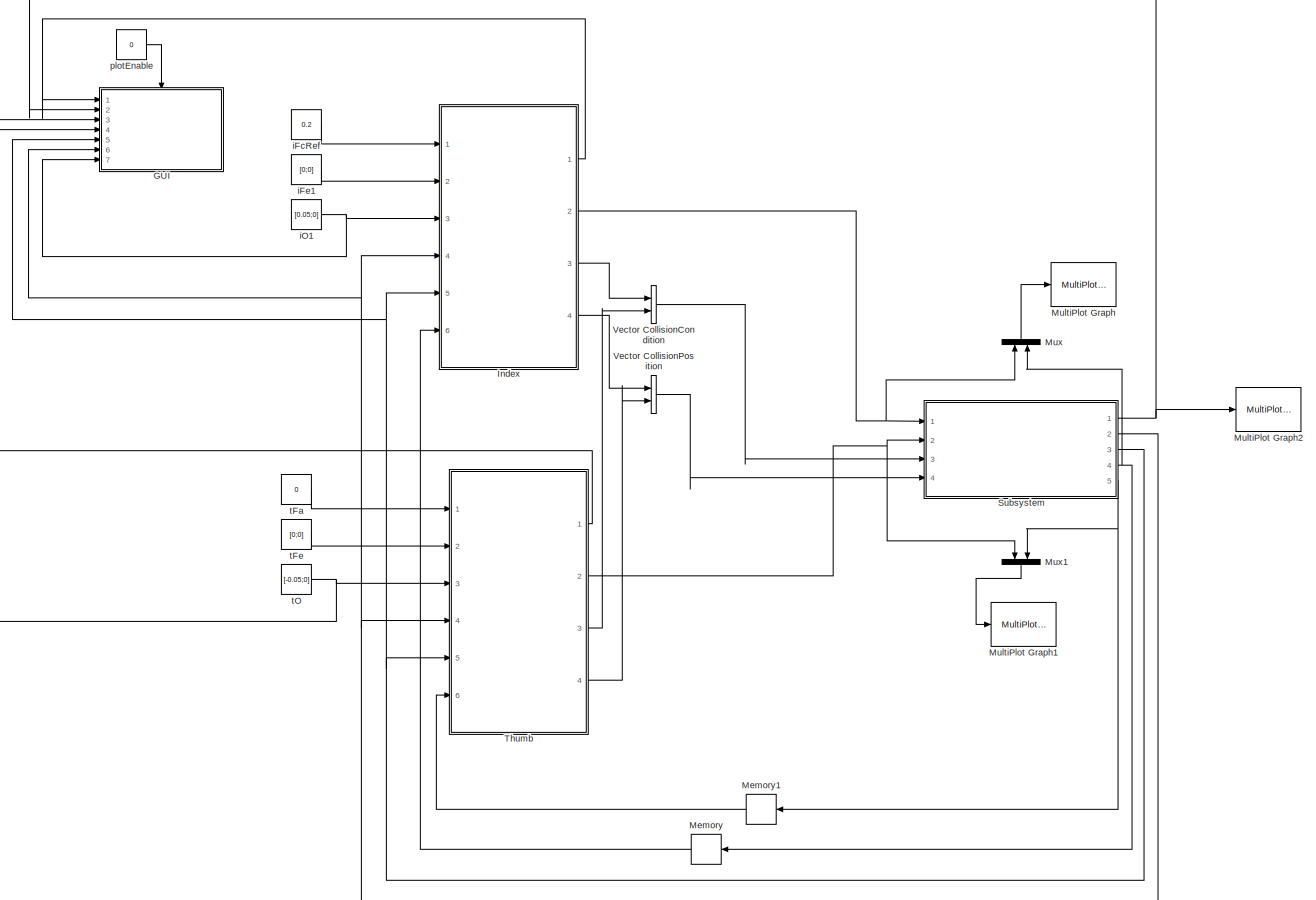
[diagram: root canvas - part 1/1, most of the canvas]
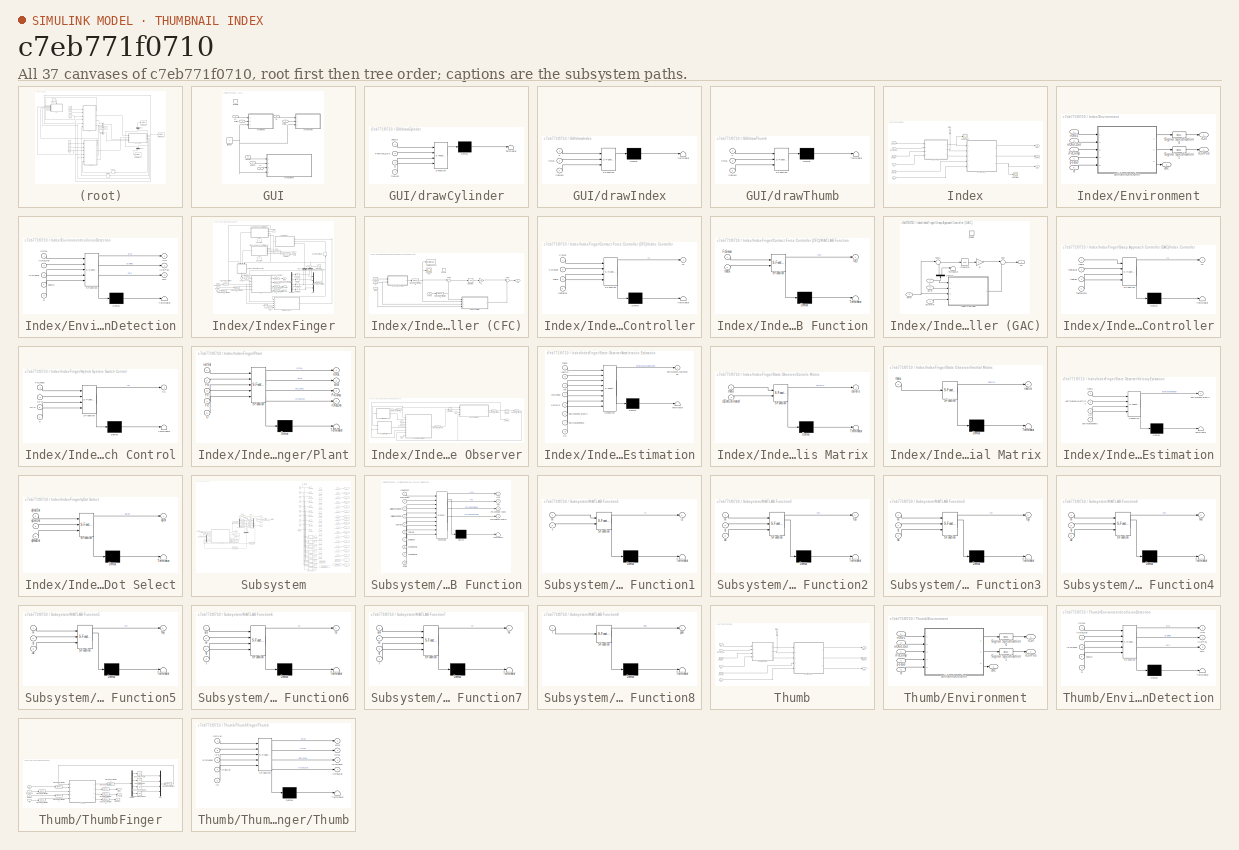
[diagram: thumbnail index - all 37 canvases of the model, root first then tree order]
MODEL slx_c7eb771f0710
KIND model
CONFIG AbsTol = auto
CONFIG FixedStep = 0.001
CONFIG MaxStep = auto
CONFIG MinStep = auto
CONFIG RelTol = 1e-3
CONFIG SampleTimeConstraint = Unconstrained
CONFIG Solver = FixedStepAuto
CONFIG SolverMode = Auto
CONFIG SolverName = FixedStepAuto
CONFIG StartTime = 0.0
CONFIG StopTime = 1
BLOCK [SubSystem] GUI
  Ports = [7, 0, 1]
  RequestExecContextInheritance = off
  TreatAsAtomicUnit = on
  Variant = off
BLOCK [EnablePort] GUI/Enable
  Ports = []
BLOCK [Inport] GUI/R
  IconDisplay = Port number
  Port = 6
BLOCK [SubSystem] GUI/drawCylinder
  ErrorFcn = Stateflow.Translate.translate
  PermitHierarchicalResolution = ExplicitOnly
  Ports = [4]
  RequestExecContextInheritance = off
  SFBlockType = MATLAB Function
  TreatAsAtomicUnit = on
  Variant = off
BLOCK [Demux] GUI/drawCylinder/ Demux 
  Outputs = 1
  Ports = [1, 1]
BLOCK [S-Function] GUI/drawCylinder/ SFunction 
  EnableBusSupport = on
  FunctionName = sf_sfun
  PortCounts = [4 1]
  Ports = [4, 1]
  SFunctionDeploymentMode = off
  Tag = Stateflow S-Function hybridSysSim_diagram 11
BLOCK [Terminator] GUI/drawCylinder/ Terminator 
BLOCK [Inport] GUI/drawCylinder/Position_o_P3
  IconDisplay = Port number
  Port = 2
BLOCK [Inport] GUI/drawCylinder/R
  IconDisplay = Port number
  Port = 3
BLOCK [Inport] GUI/drawCylinder/figNum
  IconDisplay = Port number
  Port = 4
BLOCK [Inport] GUI/drawCylinder/posG3
  IconDisplay = Port number
BLOCK [SubSystem] GUI/drawIndex
  ErrorFcn = Stateflow.Translate.translate
  PermitHierarchicalResolution = ExplicitOnly
  Ports = [3]
  RequestExecContextInheritance = off
  SFBlockType = MATLAB Function
  TreatAsAtomicUnit = on
  Variant = off
BLOCK [Demux] GUI/drawIndex/ Demux 
  Outputs = 1
  Ports = [1, 1]
BLOCK [S-Function] GUI/drawIndex/ SFunction 
  EnableBusSupport = on
  FunctionName = sf_sfun
  PortCounts = [3 1]
  Ports = [3, 1]
  SFunctionDeploymentMode = off
  Tag = Stateflow S-Function hybridSysSim_diagram 9
BLOCK [Terminator] GUI/drawIndex/ Terminator 
BLOCK [Inport] GUI/drawIndex/figNum
  IconDisplay = Port number
  Port = 3
BLOCK [Inport] GUI/drawIndex/o
  IconDisplay = Port number
BLOCK [Inport] GUI/drawIndex/rOtoL
  IconDisplay = Port number
  Port = 2
BLOCK [SubSystem] GUI/drawThumb
  ErrorFcn = Stateflow.Translate.translate
  PermitHierarchicalResolution = ExplicitOnly
  Ports = [3]
  RequestExecContextInheritance = off
  SFBlockType = MATLAB Function
  TreatAsAtomicUnit = on
  Variant = off
BLOCK [Demux] GUI/drawThumb/ Demux 
  Outputs = 1
  Ports = [1, 1]
BLOCK [S-Function] GUI/drawThumb/ SFunction 
  EnableBusSupport = on
  FunctionName = sf_sfun
  PortCounts = [3 1]
  Ports = [3, 1]
  SFunctionDeploymentMode = off
  Tag = Stateflow S-Function hybridSysSim_diagram 14
BLOCK [Terminator] GUI/drawThumb/ Terminator 
BLOCK [Inport] GUI/drawThumb/figNum
  IconDisplay = Port number
  Port = 3
BLOCK [Inport] GUI/drawThumb/o
  IconDisplay = Port number
BLOCK [Inport] GUI/drawThumb/rOtoL
  IconDisplay = Port number
  Port = 2
BLOCK [Constant] GUI/figNum
BLOCK [Inport] GUI/iO
  IconDisplay = Port number
  Port = 7
BLOCK [Inport] GUI/irOtoL
  IconDisplay = Port number
BLOCK [Inport] GUI/posG3
  IconDisplay = Port number
  Port = 5
BLOCK [Inport] GUI/posP3
  IconDisplay = Port number
  Port = 2
BLOCK [Inport] GUI/tO
  IconDisplay = Port number
  Port = 3
BLOCK [Inport] GUI/trOtoL
  IconDisplay = Port number
  Port = 4
BLOCK [SubSystem] Index
  Ports = [6, 4]
  RequestExecContextInheritance = off
  Variant = off
BLOCK [Scope] Index/ComputedF
  Ports = [1]
  ScopeSpecificationString = Simulink.scopes.TimeScopeBlockCfg('CurrentConfiguration', extmgr.ConfigurationSet(extmgr.Configuration('Core','General UI',true),extmgr.Configuration('Core','Source UI',true),extmgr.Configuration('Sources','WiredSimulink',true,'DataLoggingVariableName','ScopeData1'),extmgr.Configuration('Visuals','Time Domain',true,'SerializedDisplays',{struct('MinYLimReal','-1.58123','MaxYLimReal','0.18792','YLab...<+1472ch>
BLOCK [SubSystem] Index/Environment
  Ports = [5, 3]
  RequestExecContextInheritance = off
  Variant = off
BLOCK [Inport] Index/Environment/R
  IconDisplay = Port number
  Port = 5
BLOCK [SignalSpecification] Index/Environment/Signal Specification1
  Dimensions = 2
BLOCK [SignalSpecification] Index/Environment/Signal Specification4
  Dimensions = 1
BLOCK [Outport] Index/Environment/cRc
  IconDisplay = Port number
  Port = 3
BLOCK [SubSystem] Index/Environment/collisionDetection
  ErrorFcn = Stateflow.Translate.translate
  PermitHierarchicalResolution = ExplicitOnly
  Ports = [5, 3]
  RequestExecContextInheritance = off
  SFBlockType = MATLAB Function
  TreatAsAtomicUnit = on
  Variant = off
BLOCK [Demux] Index/Environment/collisionDetection/ Demux 
  Outputs = 1
  Ports = [1, 1]
BLOCK [S-Function] Index/Environment/collisionDetection/ SFunction 
  EnableBusSupport = on
  FunctionName = sf_sfun
  PortCounts = [5 4]
  Ports = [5, 4]
  SFunctionDeploymentMode = off
  Tag = Stateflow S-Function hybridSysSim_diagram 12
BLOCK [Terminator] Index/Environment/collisionDetection/ Terminator 
BLOCK [Inport] Index/Environment/collisionDetection/R
  IconDisplay = Port number
  Port = 5
BLOCK [Outport] Index/Environment/collisionDetection/cRc
  IconDisplay = Port number
  Port = 3
BLOCK [Outport] Index/Environment/collisionDetection/iCol
  IconDisplay = Port number
BLOCK [Outport] Index/Environment/collisionDetection/iColPos
  IconDisplay = Port number
  Port = 2
BLOCK [Inport] Index/Environment/collisionDetection/iFcComp
  IconDisplay = Port number
  Port = 3
BLOCK [Inport] Index/Environment/collisionDetection/irOtoL
  IconDisplay = Port number
BLOCK [Inport] Index/Environment/collisionDetection/irOtoLDot
  IconDisplay = Port number
  Port = 2
BLOCK [Inport] Index/Environment/collisionDetection/posG3
  IconDisplay = Port number
  Port = 4
BLOCK [Outport] Index/Environment/iCol
  IconDisplay = Port number
BLOCK [Outport] Index/Environment/iColPos
  IconDisplay = Port number
  Port = 2
BLOCK [Inport] Index/Environment/iFcComp
  IconDisplay = Port number
BLOCK [Inport] Index/Environment/irOtoL
  IconDisplay = Port number
  Port = 2
BLOCK [Inport] Index/Environment/irOtoLDot
  IconDisplay = Port number
  Port = 3
BLOCK [Inport] Index/Environment/posG3
  IconDisplay = Port number
  Port = 4
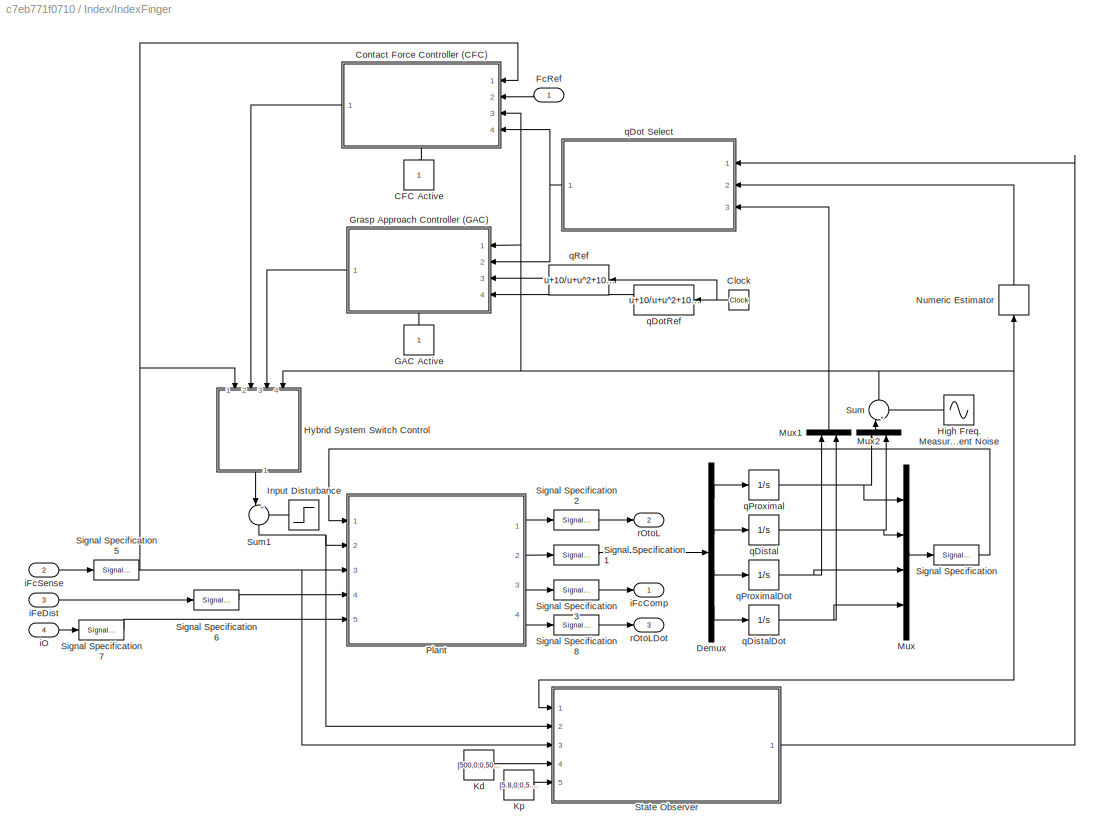
BLOCK [SubSystem] Index/IndexFinger
  Ports = [4, 3]
  RequestExecContextInheritance = off
  Variant = off
BLOCK [Constant] Index/IndexFinger/CFC Active
BLOCK [Clock] Index/IndexFinger/Clock
BLOCK [SubSystem] Index/IndexFinger/Contact Force Controller (CFC)
  Ports = [4, 1, 1]
  RequestExecContextInheritance = off
  TreatAsAtomicUnit = on
  Variant = off
BLOCK [EnablePort] Index/IndexFinger/Contact Force Controller (CFC)/Enable
  Ports = []
  StatesWhenEnabling = reset
BLOCK [Outport] Index/IndexFinger/Contact Force Controller (CFC)/Fa
  IconDisplay = Port number
BLOCK [Scope] Index/IndexFinger/Contact Force Controller (CFC)/FcD
  Ports = [1]
  ScopeSpecificationString = Simulink.scopes.TimeScopeBlockCfg('CurrentConfiguration', extmgr.ConfigurationSet(extmgr.Configuration('Core','General UI',true),extmgr.Configuration('Core','Source UI',true),extmgr.Configuration('Sources','WiredSimulink',true,'DataLoggingVariableName','ScopeData5'),extmgr.Configuration('Visuals','Time Domain',true,'SerializedDisplays',{struct('MinYLimReal','-1.00000','MaxYLimReal','1.00000','YLab...<+1427ch>
BLOCK [Inport] Index/IndexFinger/Contact Force Controller (CFC)/FcRef
  IconDisplay = Port number
  Port = 2
BLOCK [Inport] Index/IndexFinger/Contact Force Controller (CFC)/FcSense
  IconDisplay = Port number
BLOCK [SubSystem] Index/IndexFinger/Contact Force Controller (CFC)/Index Controller
  ErrorFcn = Stateflow.Translate.translate
  PermitHierarchicalResolution = ExplicitOnly
  Ports = [4, 1]
  RequestExecContextInheritance = off
  SFBlockType = MATLAB Function
  TreatAsAtomicUnit = on
  Variant = off
BLOCK [Demux] Index/IndexFinger/Contact Force Controller (CFC)/Index Controller/ Demux 
  Outputs = 1
  Ports = [1, 1]
BLOCK [S-Function] Index/IndexFinger/Contact Force Controller (CFC)/Index Controller/ SFunction 
  EnableBusSupport = on
  FunctionName = sf_sfun
  PortCounts = [4 2]
  Ports = [4, 2]
  SFunctionDeploymentMode = off
  Tag = Stateflow S-Function hybridSysSim_diagram 16
BLOCK [Terminator] Index/IndexFinger/Contact Force Controller (CFC)/Index Controller/ Terminator 
BLOCK [Inport] Index/IndexFinger/Contact Force Controller (CFC)/Index Controller/FcRef
  IconDisplay = Port number
BLOCK [Inport] Index/IndexFinger/Contact Force Controller (CFC)/Index Controller/FcSense
  IconDisplay = Port number
  Port = 2
BLOCK [Outport] Index/IndexFinger/Contact Force Controller (CFC)/Index Controller/fa
  IconDisplay = Port number
BLOCK [Inport] Index/IndexFinger/Contact Force Controller (CFC)/Index Controller/theta
  IconDisplay = Port number
  Port = 3
BLOCK [Inport] Index/IndexFinger/Contact Force Controller (CFC)/Index Controller/thetaDot
  IconDisplay = Port number
  Port = 4
BLOCK [Integrator] Index/IndexFinger/Contact Force Controller (CFC)/Integrator
  ContinuousStateAttributes = 'ErrorIntegral'
  Ports = [1, 1]
BLOCK [Gain] Index/IndexFinger/Contact Force Controller (CFC)/Ki
  Gain = 12
  Multiplication = Matrix(K*u) (u vector)
  OutDataTypeStr = Inherit: Inherit via internal rule
  ParamDataTypeStr = Inherit: Inherit via internal rule
  SaturateOnIntegerOverflow = off
BLOCK [SubSystem] Index/IndexFinger/Contact Force Controller (CFC)/MATLAB Function
  ErrorFcn = Stateflow.Translate.translate
  PermitHierarchicalResolution = ExplicitOnly
  Ports = [2, 1]
  RequestExecContextInheritance = off
  SFBlockType = MATLAB Function
  TreatAsAtomicUnit = on
  Variant = off
BLOCK [Demux] Index/IndexFinger/Contact Force Controller (CFC)/MATLAB Function/ Demux 
  Outputs = 1
  Ports = [1, 1]
BLOCK [S-Function] Index/IndexFinger/Contact Force Controller (CFC)/MATLAB Function/ SFunction 
  EnableBusSupport = on
  FunctionName = sf_sfun
  PortCounts = [2 2]
  Ports = [2, 2]
  SFunctionDeploymentMode = off
  Tag = Stateflow S-Function hybridSysSim_diagram 17
BLOCK [Terminator] Index/IndexFinger/Contact Force Controller (CFC)/MATLAB Function/ Terminator 
BLOCK [Inport] Index/IndexFinger/Contact Force Controller (CFC)/MATLAB Function/FcSense
  IconDisplay = Port number
BLOCK [Outport] Index/IndexFinger/Contact Force Controller (CFC)/MATLAB Function/fcD
  IconDisplay = Port number
BLOCK [Inport] Index/IndexFinger/Contact Force Controller (CFC)/MATLAB Function/theta
  IconDisplay = Port number
  Port = 2
BLOCK [SignalSpecification] Index/IndexFinger/Contact Force Controller (CFC)/Signal Specification4
  Dimensions = 1
BLOCK [SignalSpecification] Index/IndexFinger/Contact Force Controller (CFC)/Signal Specification9
  Dimensions = 1
BLOCK [Sum] Index/IndexFinger/Contact Force Controller (CFC)/Sum
  IconShape = round
  InputSameDT = off
  Inputs = |-+
  OutDataTypeStr = Inherit: Inherit via internal rule
  Ports = [2, 1]
  SaturateOnIntegerOverflow = off
BLOCK [Sum] Index/IndexFinger/Contact Force Controller (CFC)/Sum1
  IconShape = round
  InputSameDT = off
  Inputs = |+-
  OutDataTypeStr = Inherit: Inherit via internal rule
  Ports = [2, 1]
  SaturateOnIntegerOverflow = off
BLOCK [ToWorkspace] Index/IndexFinger/Contact Force Controller (CFC)/To Workspace1
  FixptAsFi = on
  MaxDataPoints = inf
  Ports = [1]
  SampleTime = -1
  Save2DSignal = 3-D array (concatenate along third dimension)
  VariableName = Fc
BLOCK [Inport] Index/IndexFinger/Contact Force Controller (CFC)/q
  IconDisplay = Port number
  Port = 3
BLOCK [Inport] Index/IndexFinger/Contact Force Controller (CFC)/qDot
  IconDisplay = Port number
  Port = 4
BLOCK [Demux] Index/IndexFinger/Demux
  DisplayOption = bar
  Ports = [1, 4]
BLOCK [Inport] Index/IndexFinger/FcRef
  IconDisplay = Port number
BLOCK [Constant] Index/IndexFinger/GAC Active
BLOCK [SubSystem] Index/IndexFinger/Grasp Approach Controller (GAC)
  Ports = [4, 1, 1]
  RequestExecContextInheritance = off
  TreatAsAtomicUnit = on
  Variant = off
BLOCK [Demux] Index/IndexFinger/Grasp Approach Controller (GAC)/Demux
  DisplayOption = bar
  Outputs = 2
  Ports = [1, 2]
BLOCK [EnablePort] Index/IndexFinger/Grasp Approach Controller (GAC)/Enable
  Ports = []
  StatesWhenEnabling = reset
BLOCK [Outport] Index/IndexFinger/Grasp Approach Controller (GAC)/Fa
  IconDisplay = Port number
BLOCK [SubSystem] Index/IndexFinger/Grasp Approach Controller (GAC)/Index Controller
  ErrorFcn = Stateflow.Translate.translate
  PermitHierarchicalResolution = ExplicitOnly
  Ports = [4, 1]
  RequestExecContextInheritance = off
  SFBlockType = MATLAB Function
  TreatAsAtomicUnit = on
  Variant = off
BLOCK [Demux] Index/IndexFinger/Grasp Approach Controller (GAC)/Index Controller/ Demux 
  Outputs = 1
  Ports = [1, 1]
BLOCK [S-Function] Index/IndexFinger/Grasp Approach Controller (GAC)/Index Controller/ SFunction 
  EnableBusSupport = on
  FunctionName = sf_sfun
  PortCounts = [4 2]
  Ports = [4, 2]
  SFunctionDeploymentMode = off
  Tag = Stateflow S-Function hybridSysSim_diagram 19
BLOCK [Terminator] Index/IndexFinger/Grasp Approach Controller (GAC)/Index Controller/ Terminator 
BLOCK [Outport] Index/IndexFinger/Grasp Approach Controller (GAC)/Index Controller/fa
  IconDisplay = Port number
BLOCK [Inport] Index/IndexFinger/Grasp Approach Controller (GAC)/Index Controller/theta
  IconDisplay = Port number
BLOCK [Inport] Index/IndexFinger/Grasp Approach Controller (GAC)/Index Controller/thetaDot
  IconDisplay = Port number
  Port = 2
BLOCK [Inport] Index/IndexFinger/Grasp Approach Controller (GAC)/Index Controller/thetaDotR
  IconDisplay = Port number
  Port = 4
BLOCK [Inport] Index/IndexFinger/Grasp Approach Controller (GAC)/Index Controller/thetaR
  IconDisplay = Port number
  Port = 3
BLOCK [Integrator] Index/IndexFinger/Grasp Approach Controller (GAC)/Integrator
  ContinuousStateAttributes = 'ErrorIntegral'
  Ports = [1, 1]
BLOCK [Gain] Index/IndexFinger/Grasp Approach Controller (GAC)/Ki
  Multiplication = Matrix(K*u) (u vector)
  OutDataTypeStr = Inherit: Inherit via internal rule
  ParamDataTypeStr = Inherit: Inherit via internal rule
  SaturateOnIntegerOverflow = off
BLOCK [Sum] Index/IndexFinger/Grasp Approach Controller (GAC)/Sum
  IconShape = round
  InputSameDT = off
  Inputs = |-+
  OutDataTypeStr = Inherit: Inherit via internal rule
  Ports = [2, 1]
  SaturateOnIntegerOverflow = off
BLOCK [Sum] Index/IndexFinger/Grasp Approach Controller (GAC)/Sum1
  IconShape = round
  InputSameDT = off
  Inputs = |-+
  OutDataTypeStr = Inherit: Inherit via internal rule
  Ports = [2, 1]
  SaturateOnIntegerOverflow = off
BLOCK [Terminator] Index/IndexFinger/Grasp Approach Controller (GAC)/Terminator
BLOCK [Inport] Index/IndexFinger/Grasp Approach Controller (GAC)/q
  IconDisplay = Port number
BLOCK [Inport] Index/IndexFinger/Grasp Approach Controller (GAC)/qDot
  IconDisplay = Port number
  Port = 2
BLOCK [Inport] Index/IndexFinger/Grasp Approach Controller (GAC)/qDotRef
  IconDisplay = Port number
  Port = 4
BLOCK [Inport] Index/IndexFinger/Grasp Approach Controller (GAC)/qRef
  IconDisplay = Port number
  Port = 3
BLOCK [Sin] Index/IndexFinger/High Freq. Measurement Noise
  Amplitude = 0.1
  Frequency = 5000
  Ports = [0, 1]
  SampleTime = 0
BLOCK [SubSystem] Index/IndexFinger/Hybrid System Switch Control
  ErrorFcn = Stateflow.Translate.translate
  PermitHierarchicalResolution = ExplicitOnly
  Ports = [4, 1]
  RequestExecContextInheritance = off
  SFBlockType = MATLAB Function
  TreatAsAtomicUnit = on
  Variant = off
BLOCK [Demux] Index/IndexFinger/Hybrid System Switch Control/ Demux 
  Outputs = 1
  Ports = [1, 1]
BLOCK [S-Function] Index/IndexFinger/Hybrid System Switch Control/ SFunction 
  EnableBusSupport = on
  FunctionName = sf_sfun
  PortCounts = [4 2]
  Ports = [4, 2]
  SFunctionDeploymentMode = off
  Tag = Stateflow S-Function hybridSysSim_diagram 20
BLOCK [Terminator] Index/IndexFinger/Hybrid System Switch Control/ Terminator 
BLOCK [Inport] Index/IndexFinger/Hybrid System Switch Control/CFC
  IconDisplay = Port number
  Port = 2
BLOCK [Outport] Index/IndexFinger/Hybrid System Switch Control/Fa
  IconDisplay = Port number
BLOCK [Inport] Index/IndexFinger/Hybrid System Switch Control/FcSense
  IconDisplay = Port number
BLOCK [Inport] Index/IndexFinger/Hybrid System Switch Control/GAC
  IconDisplay = Port number
  Port = 3
BLOCK [Inport] Index/IndexFinger/Hybrid System Switch Control/q
  IconDisplay = Port number
  Port = 4
BLOCK [Step] Index/IndexFinger/Input Disturbance
  After = 0
  SampleTime = 0
BLOCK [Constant] Index/IndexFinger/Kd
  Value = [500,0;0,500]
BLOCK [Constant] Index/IndexFinger/Kp
  Value = [5.8,0;0,5.8]
BLOCK [Mux] Index/IndexFinger/Mux
  DisplayOption = bar
  Ports = [4, 1]
BLOCK [Mux] Index/IndexFinger/Mux1
  DisplayOption = bar
  Inputs = 2
  Ports = [2, 1]
BLOCK [Mux] Index/IndexFinger/Mux2
  DisplayOption = bar
  Inputs = 2
  Ports = [2, 1]
BLOCK [Derivative] Index/IndexFinger/Numeric Estimator
BLOCK [SubSystem] Index/IndexFinger/Plant
  ErrorFcn = Stateflow.Translate.translate
  PermitHierarchicalResolution = ExplicitOnly
  Ports = [5, 4]
  RequestExecContextInheritance = off
  SFBlockType = MATLAB Function
  TreatAsAtomicUnit = on
  Variant = off
BLOCK [Demux] Index/IndexFinger/Plant/ Demux 
  Outputs = 1
  Ports = [1, 1]
BLOCK [S-Function] Index/IndexFinger/Plant/ SFunction 
  EnableBusSupport = on
  FunctionName = sf_sfun
  PortCounts = [5 5]
  Ports = [5, 5]
  SFunctionDeploymentMode = off
  Tag = Stateflow S-Function hybridSysSim_diagram 2
BLOCK [Terminator] Index/IndexFinger/Plant/ Terminator 
BLOCK [Inport] Index/IndexFinger/Plant/Fa
  IconDisplay = Port number
  Port = 2
BLOCK [Inport] Index/IndexFinger/Plant/Fc
  IconDisplay = Port number
  Port = 3
BLOCK [Outport] Index/IndexFinger/Plant/FcComp
  IconDisplay = Port number
  Port = 3
BLOCK [Inport] Index/IndexFinger/Plant/Fe
  IconDisplay = Port number
  Port = 4
BLOCK [Inport] Index/IndexFinger/Plant/O
  IconDisplay = Port number
  Port = 5
BLOCK [Inport] Index/IndexFinger/Plant/initVal
  IconDisplay = Port number
BLOCK [Outport] Index/IndexFinger/Plant/rOtoL
  IconDisplay = Port number
BLOCK [Outport] Index/IndexFinger/Plant/rOtoLDot
  IconDisplay = Port number
  Port = 4
BLOCK [Outport] Index/IndexFinger/Plant/xDot
  IconDisplay = Port number
  Port = 2
BLOCK [SignalSpecification] Index/IndexFinger/Signal Specification
  Dimensions = 4
BLOCK [SignalSpecification] Index/IndexFinger/Signal Specification1
  Dimensions = 4
BLOCK [SignalSpecification] Index/IndexFinger/Signal Specification2
  Dimensions = [2 2]
BLOCK [SignalSpecification] Index/IndexFinger/Signal Specification3
  Dimensions = [2 1]
BLOCK [SignalSpecification] Index/IndexFinger/Signal Specification5
  Dimensions = [2 1]
BLOCK [SignalSpecification] Index/IndexFinger/Signal Specification6
  Dimensions = [2 1]
BLOCK [SignalSpecification] Index/IndexFinger/Signal Specification7
  Dimensions = [2 1]
BLOCK [SignalSpecification] Index/IndexFinger/Signal Specification8
  Dimensions = [2 1]
BLOCK [SubSystem] Index/IndexFinger/State Observer
  Ports = [5, 1]
  RequestExecContextInheritance = off
  Variant = off
BLOCK [SubSystem] Index/IndexFinger/State Observer/Acceleration Estimation
  ErrorFcn = Stateflow.Translate.translate
  PermitHierarchicalResolution = ExplicitOnly
  Ports = [8, 1]
  RequestExecContextInheritance = off
  SFBlockType = MATLAB Function
  TreatAsAtomicUnit = on
  Variant = off
BLOCK [Demux] Index/IndexFinger/State Observer/Acceleration Estimation/ Demux 
  Outputs = 1
  Ports = [1, 1]
BLOCK [S-Function] Index/IndexFinger/State Observer/Acceleration Estimation/ SFunction 
  EnableBusSupport = on
  FunctionName = sf_sfun
  PortCounts = [8 2]
  Ports = [8, 2]
  SFunctionDeploymentMode = off
  Tag = Stateflow S-Function hybridSysSim_diagram 21
BLOCK [Terminator] Index/IndexFinger/State Observer/Acceleration Estimation/ Terminator 
BLOCK [Inport] Index/IndexFinger/State Observer/Acceleration Estimation/Coriolis
  IconDisplay = Port number
  Port = 5
BLOCK [Inport] Index/IndexFinger/State Observer/Acceleration Estimation/Inertia
  IconDisplay = Port number
  Port = 2
BLOCK [Inport] Index/IndexFinger/State Observer/Acceleration Estimation/Kp
  IconDisplay = Port number
  Port = 8
BLOCK [Outport] Index/IndexFinger/State Observer/Acceleration Estimation/estimatedAcceleration
  IconDisplay = Port number
BLOCK [Inport] Index/IndexFinger/State Observer/Acceleration Estimation/estimatedTheta
  IconDisplay = Port number
  Port = 7
BLOCK [Inport] Index/IndexFinger/State Observer/Acceleration Estimation/estimatedVelocity
  IconDisplay = Port number
  Port = 6
BLOCK [Inport] Index/IndexFinger/State Observer/Acceleration Estimation/iFa
  IconDisplay = Port number
  Port = 3
BLOCK [Inport] Index/IndexFinger/State Observer/Acceleration Estimation/iFcSense
  IconDisplay = Port number
  Port = 4
BLOCK [Inport] Index/IndexFinger/State Observer/Acceleration Estimation/theta
  IconDisplay = Port number
BLOCK [SubSystem] Index/IndexFinger/State Observer/Coriolis Matrix
  ErrorFcn = Stateflow.Translate.translate
  PermitHierarchicalResolution = ExplicitOnly
  Ports = [2, 1]
  RequestExecContextInheritance = off
  SFBlockType = MATLAB Function
  TreatAsAtomicUnit = on
  Variant = off
BLOCK [Demux] Index/IndexFinger/State Observer/Coriolis Matrix/ Demux 
  Outputs = 1
  Ports = [1, 1]
BLOCK [S-Function] Index/IndexFinger/State Observer/Coriolis Matrix/ SFunction 
  EnableBusSupport = on
  FunctionName = sf_sfun
  PortCounts = [2 2]
  Ports = [2, 2]
  SFunctionDeploymentMode = off
  Tag = Stateflow S-Function hybridSysSim_diagram 22
BLOCK [Terminator] Index/IndexFinger/State Observer/Coriolis Matrix/ Terminator 
BLOCK [Outport] Index/IndexFinger/State Observer/Coriolis Matrix/coriolis
  IconDisplay = Port number
BLOCK [Inport] Index/IndexFinger/State Observer/Coriolis Matrix/theta
  IconDisplay = Port number
BLOCK [Inport] Index/IndexFinger/State Observer/Coriolis Matrix/x1DotEstimated
  IconDisplay = Port number
  Port = 2
BLOCK [SubSystem] Index/IndexFinger/State Observer/Inertial Matrix
  ErrorFcn = Stateflow.Translate.translate
  PermitHierarchicalResolution = ExplicitOnly
  Ports = [1, 1]
  RequestExecContextInheritance = off
  SFBlockType = MATLAB Function
  TreatAsAtomicUnit = on
  Variant = off
BLOCK [Demux] Index/IndexFinger/State Observer/Inertial Matrix/ Demux 
  Outputs = 1
  Ports = [1, 1]
BLOCK [S-Function] Index/IndexFinger/State Observer/Inertial Matrix/ SFunction 
  EnableBusSupport = on
  FunctionName = sf_sfun
  PortCounts = [1 2]
  Ports = [1, 2]
  SFunctionDeploymentMode = off
  Tag = Stateflow S-Function hybridSysSim_diagram 23
BLOCK [Terminator] Index/IndexFinger/State Observer/Inertial Matrix/ Terminator 
BLOCK [Outport] Index/IndexFinger/State Observer/Inertial Matrix/inertia
  IconDisplay = Port number
BLOCK [Inport] Index/IndexFinger/State Observer/Inertial Matrix/theta
  IconDisplay = Port number
BLOCK [Integrator] Index/IndexFinger/State Observer/Integrator
  InitialCondition = [pi/10;pi/3]
  LowerSaturationLimit = -1e100
  Ports = [1, 1]
  UpperSaturationLimit = 1e100
BLOCK [Integrator] Index/IndexFinger/State Observer/Integrator1
  InitialCondition = [0;0]
  LowerSaturationLimit = -1e100
  Ports = [1, 1]
  UpperSaturationLimit = 1e100
BLOCK [Inport] Index/IndexFinger/State Observer/Kd
  IconDisplay = Port number
  Port = 4
BLOCK [Inport] Index/IndexFinger/State Observer/Kp
  IconDisplay = Port number
  Port = 5
BLOCK [SignalSpecification] Index/IndexFinger/State Observer/Signal Specification1
  Dimensions = [2 1]
BLOCK [SignalSpecification] Index/IndexFinger/State Observer/Signal Specification2
  Dimensions = [2 1]
BLOCK [SignalSpecification] Index/IndexFinger/State Observer/Signal Specification3
  Dimensions = [2 1]
BLOCK [SignalSpecification] Index/IndexFinger/State Observer/Signal Specification8
  Dimensions = [2 1]
BLOCK [SubSystem] Index/IndexFinger/State Observer/Velocity Estimation
  ErrorFcn = Stateflow.Translate.translate
  PermitHierarchicalResolution = ExplicitOnly
  Ports = [4, 1]
  RequestExecContextInheritance = off
  SFBlockType = MATLAB Function
  TreatAsAtomicUnit = on
  Variant = off
BLOCK [Demux] Index/IndexFinger/State Observer/Velocity Estimation/ Demux 
  Outputs = 1
  Ports = [1, 1]
BLOCK [S-Function] Index/IndexFinger/State Observer/Velocity Estimation/ SFunction 
  EnableBusSupport = on
  FunctionName = sf_sfun
  PortCounts = [4 2]
  Ports = [4, 2]
  SFunctionDeploymentMode = off
  Tag = Stateflow S-Function hybridSysSim_diagram 24
BLOCK [Terminator] Index/IndexFinger/State Observer/Velocity Estimation/ Terminator 
BLOCK [Inport] Index/IndexFinger/State Observer/Velocity Estimation/Kd
  IconDisplay = Port number
  Port = 3
BLOCK [Inport] Index/IndexFinger/State Observer/Velocity Estimation/estimatedTheta
  IconDisplay = Port number
  Port = 4
BLOCK [Outport] Index/IndexFinger/State Observer/Velocity Estimation/estimatedVelocity
  IconDisplay = Port number
BLOCK [Inport] Index/IndexFinger/State Observer/Velocity Estimation/estimatedVelocityX2
  IconDisplay = Port number
  Port = 2
BLOCK [Inport] Index/IndexFinger/State Observer/Velocity Estimation/theta
  IconDisplay = Port number
BLOCK [Inport] Index/IndexFinger/State Observer/iFa
  IconDisplay = Port number
  Port = 2
BLOCK [Inport] Index/IndexFinger/State Observer/iFcSense
  IconDisplay = Port number
  Port = 3
BLOCK [Inport] Index/IndexFinger/State Observer/q
  IconDisplay = Port number
BLOCK [Outport] Index/IndexFinger/State Observer/qHatDot
  IconDisplay = Port number
BLOCK [Sum] Index/IndexFinger/Sum
  IconShape = round
  InputSameDT = off
  Inputs = |++
  OutDataTypeStr = Inherit: Inherit via internal rule
  Ports = [2, 1]
  SaturateOnIntegerOverflow = off
BLOCK [Sum] Index/IndexFinger/Sum1
  IconShape = round
  InputSameDT = off
  Inputs = |++
  OutDataTypeStr = Inherit: Inherit via internal rule
  Ports = [2, 1]
  SaturateOnIntegerOverflow = off
BLOCK [Outport] Index/IndexFinger/iFcComp
  IconDisplay = Port number
BLOCK [Inport] Index/IndexFinger/iFcSense
  IconDisplay = Port number
  Port = 2
BLOCK [Inport] Index/IndexFinger/iFeDist
  IconDisplay = Port number
  Port = 3
BLOCK [Inport] Index/IndexFinger/iO
  IconDisplay = Port number
  Port = 4
BLOCK [Integrator] Index/IndexFinger/qDistal
  ContinuousStateAttributes = 'indexDistTheta'
  InitialCondition = pi/3
  Ports = [1, 1]
BLOCK [Integrator] Index/IndexFinger/qDistalDot
  ContinuousStateAttributes = 'indexDistThetaDot'
  Ports = [1, 1]
BLOCK [SubSystem] Index/IndexFinger/qDot Select
  ErrorFcn = Stateflow.Translate.translate
  PermitHierarchicalResolution = ExplicitOnly
  Ports = [3, 1]
  RequestExecContextInheritance = off
  SFBlockType = MATLAB Function
  TreatAsAtomicUnit = on
  Variant = off
BLOCK [Demux] Index/IndexFinger/qDot Select/ Demux 
  Outputs = 1
  Ports = [1, 1]
BLOCK [S-Function] Index/IndexFinger/qDot Select/ SFunction 
  EnableBusSupport = on
  FunctionName = sf_sfun
  PortCounts = [3 2]
  Ports = [3, 2]
  SFunctionDeploymentMode = off
  Tag = Stateflow S-Function hybridSysSim_diagram 25
BLOCK [Terminator] Index/IndexFinger/qDot Select/ Terminator 
BLOCK [Inport] Index/IndexFinger/qDot Select/qDerDot
  IconDisplay = Port number
  Port = 2
BLOCK [Outport] Index/IndexFinger/qDot Select/qDot
  IconDisplay = Port number
BLOCK [Inport] Index/IndexFinger/qDot Select/qHatDot
  IconDisplay = Port number
BLOCK [Inport] Index/IndexFinger/qDot Select/qModDot
  IconDisplay = Port number
  Port = 3
BLOCK [Fcn] Index/IndexFinger/qDotRef
  Expr = u+10/u+u^2+10*u
BLOCK [Integrator] Index/IndexFinger/qProximal
  ContinuousStateAttributes = 'indexProxTheta'
  InitialCondition = pi/10
  Ports = [1, 1]
BLOCK [Integrator] Index/IndexFinger/qProximalDot
  ContinuousStateAttributes = 'indexProxThetaDot'
  Ports = [1, 1]
BLOCK [Fcn] Index/IndexFinger/qRef
  Expr = u+10/u+u^2+10*u
BLOCK [Outport] Index/IndexFinger/rOtoL
  IconDisplay = Port number
  Port = 2
BLOCK [Outport] Index/IndexFinger/rOtoLDot
  IconDisplay = Port number
  Port = 3
BLOCK [Inport] Index/R
  IconDisplay = Port number
  Port = 4
BLOCK [Scope] Index/ReactionF
  Ports = [1]
  ScopeSpecificationString = Simulink.scopes.TimeScopeBlockCfg('CurrentConfiguration', extmgr.ConfigurationSet(extmgr.Configuration('Core','General UI',true),extmgr.Configuration('Core','Source UI',true),extmgr.Configuration('Sources','WiredSimulink',true,'DataLoggingVariableName','ScopeData2'),extmgr.Configuration('Visuals','Time Domain',true,'SerializedDisplays',{struct('MinYLimReal','-2.47005','MaxYLimReal','0.87632','YLab...<+1464ch>
BLOCK [Outport] Index/iCol
  IconDisplay = Port number
  Port = 3
BLOCK [Outport] Index/iColPos
  IconDisplay = Port number
  Port = 4
BLOCK [Inport] Index/iFcRef
  IconDisplay = Port number
BLOCK [Inport] Index/iFcSense
  IconDisplay = Port number
  Port = 6
BLOCK [Inport] Index/iFeDist
  IconDisplay = Port number
  Port = 2
BLOCK [Inport] Index/iO
  IconDisplay = Port number
  Port = 3
BLOCK [Outport] Index/icRc
  IconDisplay = Port number
  Port = 2
BLOCK [Outport] Index/irOtoL
  IconDisplay = Port number
BLOCK [Inport] Index/posG3
  IconDisplay = Port number
  Port = 5
BLOCK [Memory] Memory
  InheritSampleTime = on
BLOCK [Memory] Memory1
  InheritSampleTime = on
BLOCK [Reference] MultiPlot Graph  REF=RCTblocks/MultiPlot Graph
  Ports = [1]
  SourceBlock = RCTblocks/MultiPlot Graph
  SourceType = MultiPlot Graph
  Tag = MultiPlot
BLOCK [Reference] MultiPlot Graph1  REF=RCTblocks/MultiPlot Graph
  Ports = [1]
  SourceBlock = RCTblocks/MultiPlot Graph
  SourceType = MultiPlot Graph
  Tag = MultiPlot
BLOCK [Reference] MultiPlot Graph2  REF=RCTblocks/MultiPlot Graph
  Ports = [1]
  SourceBlock = RCTblocks/MultiPlot Graph
  SourceType = MultiPlot Graph
  Tag = MultiPlot
BLOCK [Mux] Mux
  DisplayOption = bar
  Inputs = 2
  Ports = [2, 1]
BLOCK [Mux] Mux1
  DisplayOption = bar
  Inputs = 2
  Ports = [2, 1]
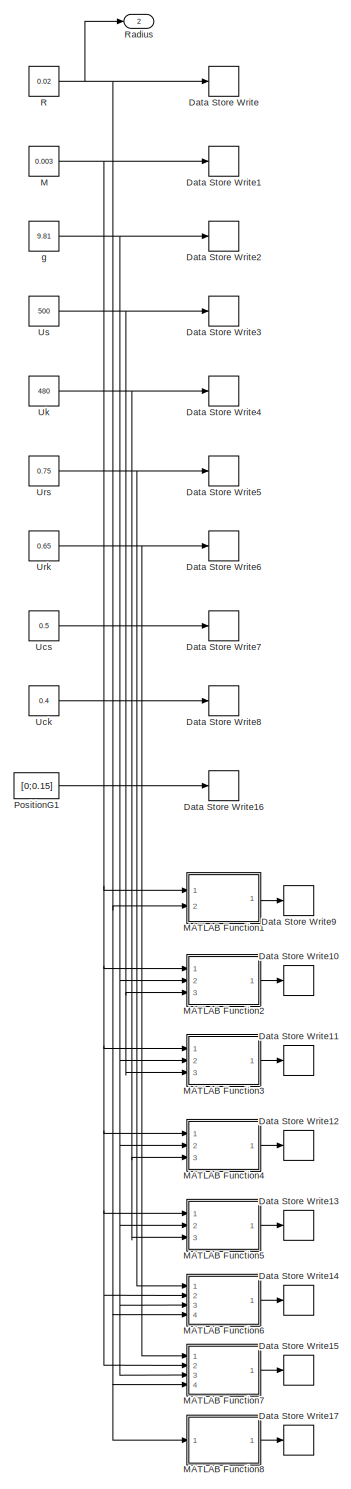
[diagram: Subsystem - part 1/3, right side, full height]
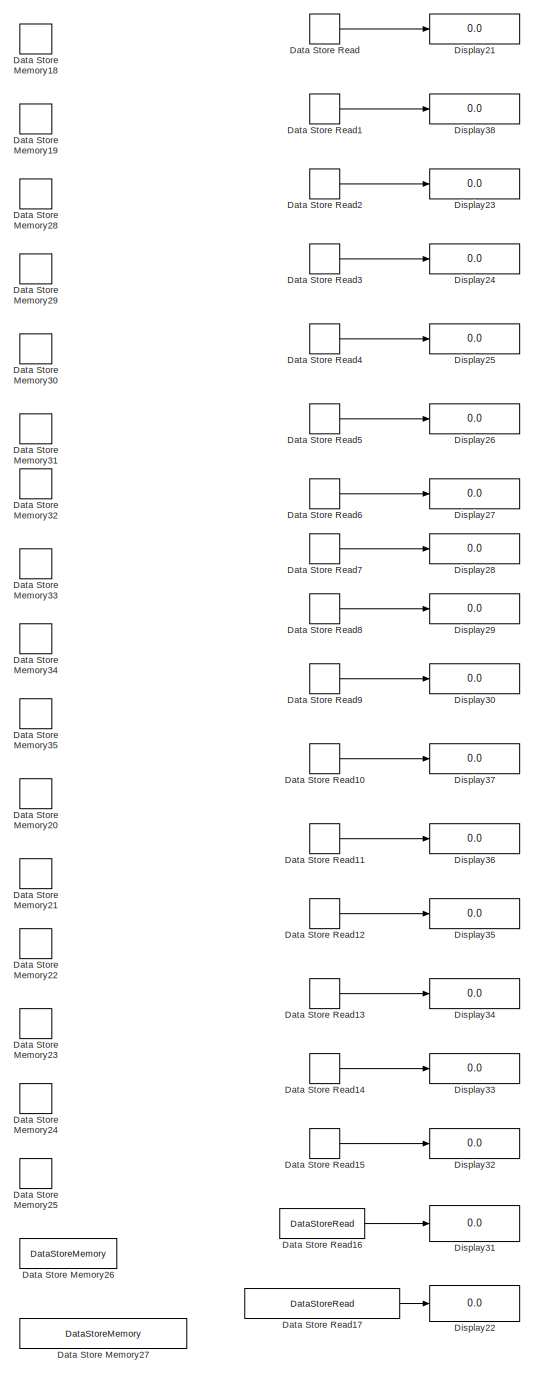
[diagram: Subsystem - part 2/3, right side, full height]
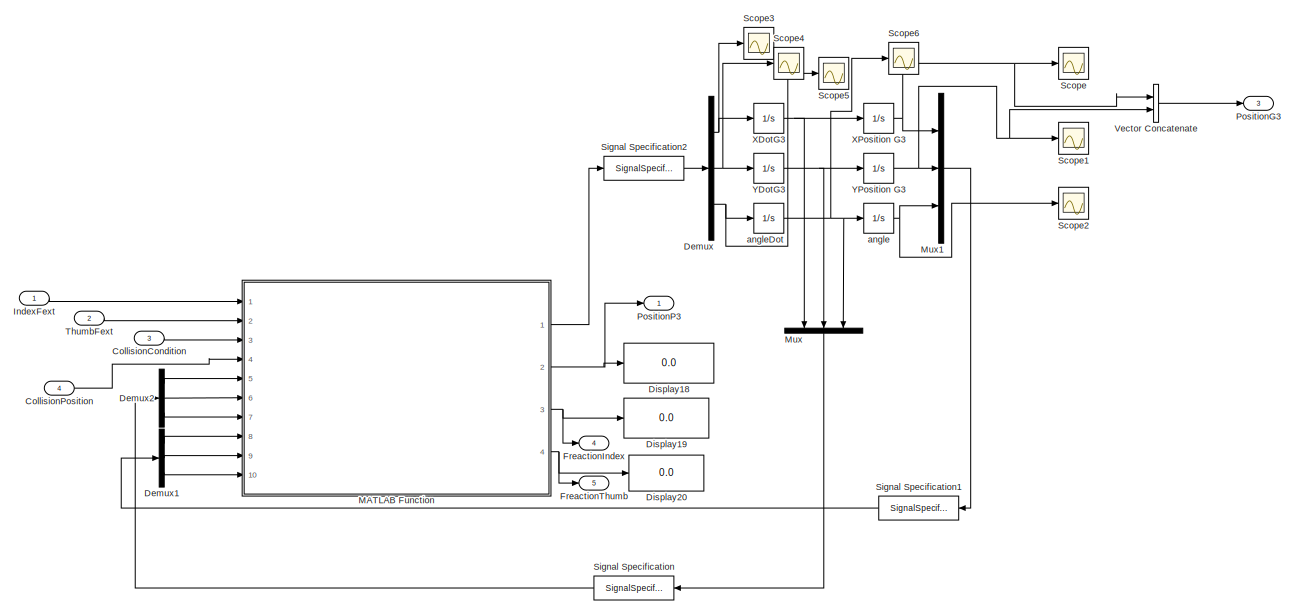
[diagram: Subsystem - part 3/3, middle left region]
BLOCK [SubSystem] Subsystem
  Ports = [4, 5]
  RequestExecContextInheritance = off
  Variant = off
BLOCK [Inport] Subsystem/CollisionCondition
  IconDisplay = Port number
  Port = 3
BLOCK [Inport] Subsystem/CollisionPosition
  IconDisplay = Port number
  Port = 4
BLOCK [DataStoreMemory] Subsystem/Data Store Memory18
  DataStoreName = R
  OutDataTypeStr = double
  ReadBeforeWriteMsg = warning
  SignalType = real
  WriteAfterReadMsg = warning
  WriteAfterWriteMsg = warning
BLOCK [DataStoreMemory] Subsystem/Data Store Memory19
  DataStoreName = M
  InitialValue = 0.003
  OutDataTypeStr = double
  ReadBeforeWriteMsg = warning
  SignalType = real
  WriteAfterReadMsg = warning
  WriteAfterWriteMsg = warning
BLOCK [DataStoreMemory] Subsystem/Data Store Memory20
  DataStoreName = F_s_x
  OutDataTypeStr = double
  ReadBeforeWriteMsg = warning
  SignalType = real
  WriteAfterReadMsg = warning
  WriteAfterWriteMsg = warning
BLOCK [DataStoreMemory] Subsystem/Data Store Memory21
  DataStoreName = F_s_y
  OutDataTypeStr = double
  ReadBeforeWriteMsg = warning
  SignalType = real
  WriteAfterReadMsg = warning
  WriteAfterWriteMsg = warning
BLOCK [DataStoreMemory] Subsystem/Data Store Memory22
  DataStoreName = F_k_x
  OutDataTypeStr = double
  ReadBeforeWriteMsg = warning
  SignalType = real
  WriteAfterReadMsg = warning
  WriteAfterWriteMsg = warning
BLOCK [DataStoreMemory] Subsystem/Data Store Memory23
  DataStoreName = F_k_y
  OutDataTypeStr = double
  ReadBeforeWriteMsg = warning
  SignalType = real
  WriteAfterReadMsg = warning
  WriteAfterWriteMsg = warning
BLOCK [DataStoreMemory] Subsystem/Data Store Memory24
  DataStoreName = T_s
  OutDataTypeStr = double
  ReadBeforeWriteMsg = warning
  SignalType = real
  WriteAfterReadMsg = warning
  WriteAfterWriteMsg = warning
BLOCK [DataStoreMemory] Subsystem/Data Store Memory25
  DataStoreName = T_k
  OutDataTypeStr = double
  ReadBeforeWriteMsg = warning
  SignalType = real
  WriteAfterReadMsg = warning
  WriteAfterWriteMsg = warning
BLOCK [DataStoreMemory] Subsystem/Data Store Memory26
  DataStoreName = Position_o_G3
  InitialValue = [0;0]
  OutDataTypeStr = double
  ReadBeforeWriteMsg = warning
  SignalType = real
  WriteAfterReadMsg = warning
  WriteAfterWriteMsg = warning
BLOCK [DataStoreMemory] Subsystem/Data Store Memory27
  DataStoreName = Position_G3_P3_frame_cylinder
  InitialValue = [0;0]
  OutDataTypeStr = double
  ReadBeforeWriteMsg = warning
  SignalType = real
  WriteAfterReadMsg = warning
  WriteAfterWriteMsg = warning
BLOCK [DataStoreMemory] Subsystem/Data Store Memory28
  DataStoreName = g
  InitialValue = 9.81
  OutDataTypeStr = double
  ReadBeforeWriteMsg = warning
  SignalType = real
  WriteAfterReadMsg = warning
  WriteAfterWriteMsg = warning
BLOCK [DataStoreMemory] Subsystem/Data Store Memory29
  DataStoreName = Us
  InitialValue = 0.5
  OutDataTypeStr = double
  ReadBeforeWriteMsg = warning
  SignalType = real
  WriteAfterReadMsg = warning
  WriteAfterWriteMsg = warning
BLOCK [DataStoreMemory] Subsystem/Data Store Memory30
  DataStoreName = Uk
  InitialValue = 0.48
  OutDataTypeStr = double
  ReadBeforeWriteMsg = warning
  SignalType = real
  WriteAfterReadMsg = warning
  WriteAfterWriteMsg = warning
BLOCK [DataStoreMemory] Subsystem/Data Store Memory31
  DataStoreName = Urs
  InitialValue = 0.5
  OutDataTypeStr = double
  ReadBeforeWriteMsg = warning
  SignalType = real
  WriteAfterReadMsg = warning
  WriteAfterWriteMsg = warning
BLOCK [DataStoreMemory] Subsystem/Data Store Memory32
  DataStoreName = Urk
  InitialValue = 0.48
  OutDataTypeStr = double
  ReadBeforeWriteMsg = warning
  SignalType = real
  WriteAfterReadMsg = warning
  WriteAfterWriteMsg = warning
BLOCK [DataStoreMemory] Subsystem/Data Store Memory33
  DataStoreName = Ucs
  InitialValue = 0.5
  OutDataTypeStr = double
  ReadBeforeWriteMsg = warning
  SignalType = real
  WriteAfterReadMsg = warning
  WriteAfterWriteMsg = warning
BLOCK [DataStoreMemory] Subsystem/Data Store Memory34
  DataStoreName = Uck
  InitialValue = 0.4
  OutDataTypeStr = double
  ReadBeforeWriteMsg = warning
  SignalType = real
  WriteAfterReadMsg = warning
  WriteAfterWriteMsg = warning
BLOCK [DataStoreMemory] Subsystem/Data Store Memory35
  DataStoreName = Iz
  OutDataTypeStr = double
  ReadBeforeWriteMsg = warning
  SignalType = real
  WriteAfterReadMsg = warning
  WriteAfterWriteMsg = warning
BLOCK [DataStoreRead] Subsystem/Data Store Read
  DataStoreName = R
  Ports = [0, 1]
BLOCK [DataStoreRead] Subsystem/Data Store Read1
  DataStoreName = M
  Ports = [0, 1]
BLOCK [DataStoreRead] Subsystem/Data Store Read10
  DataStoreName = F_s_x
  Ports = [0, 1]
BLOCK [DataStoreRead] Subsystem/Data Store Read11
  DataStoreName = F_s_y
  Ports = [0, 1]
BLOCK [DataStoreRead] Subsystem/Data Store Read12
  DataStoreName = F_k_x
  Ports = [0, 1]
BLOCK [DataStoreRead] Subsystem/Data Store Read13
  DataStoreName = F_k_y
  Ports = [0, 1]
BLOCK [DataStoreRead] Subsystem/Data Store Read14
  DataStoreName = T_s
  Ports = [0, 1]
BLOCK [DataStoreRead] Subsystem/Data Store Read15
  DataStoreName = T_k
  Ports = [0, 1]
BLOCK [DataStoreRead] Subsystem/Data Store Read16
  DataStoreName = Position_o_G3
  Ports = [0, 1]
BLOCK [DataStoreRead] Subsystem/Data Store Read17
  DataStoreName = Position_G3_P3_frame_cylinder
  Ports = [0, 1]
BLOCK [DataStoreRead] Subsystem/Data Store Read2
  DataStoreName = g
  Ports = [0, 1]
BLOCK [DataStoreRead] Subsystem/Data Store Read3
  DataStoreName = Us
  Ports = [0, 1]
BLOCK [DataStoreRead] Subsystem/Data Store Read4
  DataStoreName = Uk
  Ports = [0, 1]
BLOCK [DataStoreRead] Subsystem/Data Store Read5
  DataStoreName = Urs
  Ports = [0, 1]
BLOCK [DataStoreRead] Subsystem/Data Store Read6
  DataStoreName = Urk
  Ports = [0, 1]
BLOCK [DataStoreRead] Subsystem/Data Store Read7
  DataStoreName = Ucs
  Ports = [0, 1]
BLOCK [DataStoreRead] Subsystem/Data Store Read8
  DataStoreName = Uck
  Ports = [0, 1]
BLOCK [DataStoreRead] Subsystem/Data Store Read9
  DataStoreName = Iz
  Ports = [0, 1]
BLOCK [DataStoreWrite] Subsystem/Data Store Write
  DataStoreName = R
  Ports = [1]
BLOCK [DataStoreWrite] Subsystem/Data Store Write1
  DataStoreName = M
  Ports = [1]
BLOCK [DataStoreWrite] Subsystem/Data Store Write10
  DataStoreName = F_s_x
  Ports = [1]
BLOCK [DataStoreWrite] Subsystem/Data Store Write11
  DataStoreName = F_s_y
  Ports = [1]
BLOCK [DataStoreWrite] Subsystem/Data Store Write12
  DataStoreName = F_k_x
  Ports = [1]
BLOCK [DataStoreWrite] Subsystem/Data Store Write13
  DataStoreName = F_k_y
  Ports = [1]
BLOCK [DataStoreWrite] Subsystem/Data Store Write14
  DataStoreName = T_s
  Ports = [1]
BLOCK [DataStoreWrite] Subsystem/Data Store Write15
  DataStoreName = T_k
  Ports = [1]
BLOCK [DataStoreWrite] Subsystem/Data Store Write16
  DataStoreName = Position_o_G3
  Ports = [1]
BLOCK [DataStoreWrite] Subsystem/Data Store Write17
  DataStoreName = Position_G3_P3_frame_cylinder
  Ports = [1]
BLOCK [DataStoreWrite] Subsystem/Data Store Write2
  DataStoreName = g
  Ports = [1]
BLOCK [DataStoreWrite] Subsystem/Data Store Write3
  DataStoreName = Us
  Ports = [1]
BLOCK [DataStoreWrite] Subsystem/Data Store Write4
  DataStoreName = Uk
  Ports = [1]
BLOCK [DataStoreWrite] Subsystem/Data Store Write5
  DataStoreName = Urs
  Ports = [1]
BLOCK [DataStoreWrite] Subsystem/Data Store Write6
  DataStoreName = Urk
  Ports = [1]
BLOCK [DataStoreWrite] Subsystem/Data Store Write7
  DataStoreName = Ucs
  Ports = [1]
BLOCK [DataStoreWrite] Subsystem/Data Store Write8
  DataStoreName = Uck
  Ports = [1]
BLOCK [DataStoreWrite] Subsystem/Data Store Write9
  DataStoreName = Iz
  Ports = [1]
BLOCK [Demux] Subsystem/Demux
  DisplayOption = bar
  Outputs = 3
  Ports = [1, 3]
BLOCK [Demux] Subsystem/Demux1
  DisplayOption = bar
  Outputs = 3
  Ports = [1, 3]
BLOCK [Demux] Subsystem/Demux2
  DisplayOption = bar
  Outputs = 3
  Ports = [1, 3]
BLOCK [Display] Subsystem/Display18
  Decimation = 1
  Ports = [1]
BLOCK [Display] Subsystem/Display19
  Decimation = 1
  Ports = [1]
BLOCK [Display] Subsystem/Display20
  Decimation = 1
  Ports = [1]
BLOCK [Display] Subsystem/Display21
  Decimation = 1
  Ports = [1]
BLOCK [Display] Subsystem/Display22
  Decimation = 1
  Ports = [1]
BLOCK [Display] Subsystem/Display23
  Decimation = 1
  Ports = [1]
BLOCK [Display] Subsystem/Display24
  Decimation = 1
  Ports = [1]
BLOCK [Display] Subsystem/Display25
  Decimation = 1
  Ports = [1]
BLOCK [Display] Subsystem/Display26
  Decimation = 1
  Ports = [1]
BLOCK [Display] Subsystem/Display27
  Decimation = 1
  Ports = [1]
BLOCK [Display] Subsystem/Display28
  Decimation = 1
  Ports = [1]
BLOCK [Display] Subsystem/Display29
  Decimation = 1
  Ports = [1]
BLOCK [Display] Subsystem/Display30
  Decimation = 1
  Ports = [1]
BLOCK [Display] Subsystem/Display31
  Decimation = 1
  Ports = [1]
BLOCK [Display] Subsystem/Display32
  Decimation = 1
  Ports = [1]
BLOCK [Display] Subsystem/Display33
  Decimation = 1
  Ports = [1]
BLOCK [Display] Subsystem/Display34
  Decimation = 1
  Ports = [1]
BLOCK [Display] Subsystem/Display35
  Decimation = 1
  Ports = [1]
BLOCK [Display] Subsystem/Display36
  Decimation = 1
  Ports = [1]
BLOCK [Display] Subsystem/Display37
  Decimation = 1
  Ports = [1]
BLOCK [Display] Subsystem/Display38
  Decimation = 1
  Ports = [1]
BLOCK [Outport] Subsystem/FreactionIndex
  IconDisplay = Port number
  Port = 4
BLOCK [Outport] Subsystem/FreactionThumb
  IconDisplay = Port number
  Port = 5
BLOCK [Inport] Subsystem/IndexFext
  IconDisplay = Port number
BLOCK [Constant] Subsystem/M
  Value = 0.003
BLOCK [SubSystem] Subsystem/MATLAB Function
  ErrorFcn = Stateflow.Translate.translate
  PermitHierarchicalResolution = ExplicitOnly
  Ports = [10, 4]
  RequestExecContextInheritance = off
  SFBlockType = MATLAB Function
  TreatAsAtomicUnit = on
  Variant = off
BLOCK [Demux] Subsystem/MATLAB Function/ Demux 
  Outputs = 1
  Ports = [1, 1]
BLOCK [S-Function] Subsystem/MATLAB Function/ SFunction 
  EnableBusSupport = on
  FunctionName = sf_sfun
  PortCounts = [10 5]
  Ports = [10, 5]
  SFunctionDeploymentMode = off
  Tag = Stateflow S-Function hybridSysSim_diagram 1
BLOCK [Terminator] Subsystem/MATLAB Function/ Terminator 
BLOCK [Outport] Subsystem/MATLAB Function/Acce
  IconDisplay = Port number
BLOCK [Inport] Subsystem/MATLAB Function/CollisionCondition
  IconDisplay = Port number
  Port = 3
BLOCK [Inport] Subsystem/MATLAB Function/CollisionPosition
  IconDisplay = Port number
  Port = 4
BLOCK [Outport] Subsystem/MATLAB Function/ForceReactIndex
  IconDisplay = Port number
  Port = 3
BLOCK [Outport] Subsystem/MATLAB Function/ForceReactThumb
  IconDisplay = Port number
  Port = 4
BLOCK [Inport] Subsystem/MATLAB Function/IndexFext
  IconDisplay = Port number
BLOCK [Outport] Subsystem/MATLAB Function/Pos
  IconDisplay = Port number
  Port = 2
BLOCK [Inport] Subsystem/MATLAB Function/ThumbFext
  IconDisplay = Port number
  Port = 2
BLOCK [Inport] Subsystem/MATLAB Function/angle
  IconDisplay = Port number
  Port = 10
BLOCK [Inport] Subsystem/MATLAB Function/angleDot
  IconDisplay = Port number
  Port = 7
BLOCK [Inport] Subsystem/MATLAB Function/xDotG3
  IconDisplay = Port number
  Port = 5
BLOCK [Inport] Subsystem/MATLAB Function/xPositionG3
  IconDisplay = Port number
  Port = 8
BLOCK [Inport] Subsystem/MATLAB Function/yDotG3
  IconDisplay = Port number
  Port = 6
BLOCK [Inport] Subsystem/MATLAB Function/yPositionG3
  IconDisplay = Port number
  Port = 9
BLOCK [SubSystem] Subsystem/MATLAB Function1
  ErrorFcn = Stateflow.Translate.translate
  PermitHierarchicalResolution = ExplicitOnly
  Ports = [2, 1]
  RequestExecContextInheritance = off
  SFBlockType = MATLAB Function
  TreatAsAtomicUnit = on
  Variant = off
BLOCK [Demux] Subsystem/MATLAB Function1/ Demux 
  Outputs = 1
  Ports = [1, 1]
BLOCK [S-Function] Subsystem/MATLAB Function1/ SFunction 
  EnableBusSupport = on
  FunctionName = sf_sfun
  PortCounts = [2 2]
  Ports = [2, 2]
  SFunctionDeploymentMode = off
  Tag = Stateflow S-Function hybridSysSim_diagram 3
BLOCK [Terminator] Subsystem/MATLAB Function1/ Terminator 
BLOCK [Outport] Subsystem/MATLAB Function1/iz
  IconDisplay = Port number
BLOCK [Inport] Subsystem/MATLAB Function1/m
  IconDisplay = Port number
BLOCK [Inport] Subsystem/MATLAB Function1/r
  IconDisplay = Port number
  Port = 2
BLOCK [SubSystem] Subsystem/MATLAB Function2
  ErrorFcn = Stateflow.Translate.translate
  PermitHierarchicalResolution = ExplicitOnly
  Ports = [3, 1]
  RequestExecContextInheritance = off
  SFBlockType = MATLAB Function
  TreatAsAtomicUnit = on
  Variant = off
BLOCK [Demux] Subsystem/MATLAB Function2/ Demux 
  Outputs = 1
  Ports = [1, 1]
BLOCK [S-Function] Subsystem/MATLAB Function2/ SFunction 
  EnableBusSupport = on
  FunctionName = sf_sfun
  PortCounts = [3 2]
  Ports = [3, 2]
  SFunctionDeploymentMode = off
  Tag = Stateflow S-Function hybridSysSim_diagram 4
BLOCK [Terminator] Subsystem/MATLAB Function2/ Terminator 
BLOCK [Outport] Subsystem/MATLAB Function2/fsx
  IconDisplay = Port number
BLOCK [Inport] Subsystem/MATLAB Function2/g
  IconDisplay = Port number
  Port = 2
BLOCK [Inport] Subsystem/MATLAB Function2/m
  IconDisplay = Port number
BLOCK [Inport] Subsystem/MATLAB Function2/us
  IconDisplay = Port number
  Port = 3
BLOCK [SubSystem] Subsystem/MATLAB Function3
  ErrorFcn = Stateflow.Translate.translate
  PermitHierarchicalResolution = ExplicitOnly
  Ports = [3, 1]
  RequestExecContextInheritance = off
  SFBlockType = MATLAB Function
  TreatAsAtomicUnit = on
  Variant = off
BLOCK [Demux] Subsystem/MATLAB Function3/ Demux 
  Outputs = 1
  Ports = [1, 1]
BLOCK [S-Function] Subsystem/MATLAB Function3/ SFunction 
  EnableBusSupport = on
  FunctionName = sf_sfun
  PortCounts = [3 2]
  Ports = [3, 2]
  SFunctionDeploymentMode = off
  Tag = Stateflow S-Function hybridSysSim_diagram 5
BLOCK [Terminator] Subsystem/MATLAB Function3/ Terminator 
BLOCK [Outport] Subsystem/MATLAB Function3/fsy
  IconDisplay = Port number
BLOCK [Inport] Subsystem/MATLAB Function3/g
  IconDisplay = Port number
  Port = 2
BLOCK [Inport] Subsystem/MATLAB Function3/m
  IconDisplay = Port number
BLOCK [Inport] Subsystem/MATLAB Function3/us
  IconDisplay = Port number
  Port = 3
BLOCK [SubSystem] Subsystem/MATLAB Function4
  ErrorFcn = Stateflow.Translate.translate
  PermitHierarchicalResolution = ExplicitOnly
  Ports = [3, 1]
  RequestExecContextInheritance = off
  SFBlockType = MATLAB Function
  TreatAsAtomicUnit = on
  Variant = off
BLOCK [Demux] Subsystem/MATLAB Function4/ Demux 
  Outputs = 1
  Ports = [1, 1]
BLOCK [S-Function] Subsystem/MATLAB Function4/ SFunction 
  EnableBusSupport = on
  FunctionName = sf_sfun
  PortCounts = [3 2]
  Ports = [3, 2]
  SFunctionDeploymentMode = off
  Tag = Stateflow S-Function hybridSysSim_diagram 6
BLOCK [Terminator] Subsystem/MATLAB Function4/ Terminator 
BLOCK [Outport] Subsystem/MATLAB Function4/fkx
  IconDisplay = Port number
BLOCK [Inport] Subsystem/MATLAB Function4/g
  IconDisplay = Port number
  Port = 2
BLOCK [Inport] Subsystem/MATLAB Function4/m
  IconDisplay = Port number
BLOCK [Inport] Subsystem/MATLAB Function4/uk
  IconDisplay = Port number
  Port = 3
BLOCK [SubSystem] Subsystem/MATLAB Function5
  ErrorFcn = Stateflow.Translate.translate
  PermitHierarchicalResolution = ExplicitOnly
  Ports = [3, 1]
  RequestExecContextInheritance = off
  SFBlockType = MATLAB Function
  TreatAsAtomicUnit = on
  Variant = off
BLOCK [Demux] Subsystem/MATLAB Function5/ Demux 
  Outputs = 1
  Ports = [1, 1]
BLOCK [S-Function] Subsystem/MATLAB Function5/ SFunction 
  EnableBusSupport = on
  FunctionName = sf_sfun
  PortCounts = [3 2]
  Ports = [3, 2]
  SFunctionDeploymentMode = off
  Tag = Stateflow S-Function hybridSysSim_diagram 7
BLOCK [Terminator] Subsystem/MATLAB Function5/ Terminator 
BLOCK [Outport] Subsystem/MATLAB Function5/fky
  IconDisplay = Port number
BLOCK [Inport] Subsystem/MATLAB Function5/g
  IconDisplay = Port number
  Port = 2
BLOCK [Inport] Subsystem/MATLAB Function5/m
  IconDisplay = Port number
BLOCK [Inport] Subsystem/MATLAB Function5/uk
  IconDisplay = Port number
  Port = 3
BLOCK [SubSystem] Subsystem/MATLAB Function6
  ErrorFcn = Stateflow.Translate.translate
  PermitHierarchicalResolution = ExplicitOnly
  Ports = [4, 1]
  RequestExecContextInheritance = off
  SFBlockType = MATLAB Function
  TreatAsAtomicUnit = on
  Variant = off
BLOCK [Demux] Subsystem/MATLAB Function6/ Demux 
  Outputs = 1
  Ports = [1, 1]
BLOCK [S-Function] Subsystem/MATLAB Function6/ SFunction 
  EnableBusSupport = on
  FunctionName = sf_sfun
  PortCounts = [4 2]
  Ports = [4, 2]
  SFunctionDeploymentMode = off
  Tag = Stateflow S-Function hybridSysSim_diagram 8
BLOCK [Terminator] Subsystem/MATLAB Function6/ Terminator 
BLOCK [Inport] Subsystem/MATLAB Function6/g
  IconDisplay = Port number
  Port = 3
BLOCK [Inport] Subsystem/MATLAB Function6/m
  IconDisplay = Port number
  Port = 2
BLOCK [Inport] Subsystem/MATLAB Function6/r
  IconDisplay = Port number
  Port = 4
BLOCK [Outport] Subsystem/MATLAB Function6/ts
  IconDisplay = Port number
BLOCK [Inport] Subsystem/MATLAB Function6/urs
  IconDisplay = Port number
BLOCK [SubSystem] Subsystem/MATLAB Function7
  ErrorFcn = Stateflow.Translate.translate
  PermitHierarchicalResolution = ExplicitOnly
  Ports = [4, 1]
  RequestExecContextInheritance = off
  SFBlockType = MATLAB Function
  TreatAsAtomicUnit = on
  Variant = off
BLOCK [Demux] Subsystem/MATLAB Function7/ Demux 
  Outputs = 1
  Ports = [1, 1]
BLOCK [S-Function] Subsystem/MATLAB Function7/ SFunction 
  EnableBusSupport = on
  FunctionName = sf_sfun
  PortCounts = [4 2]
  Ports = [4, 2]
  SFunctionDeploymentMode = off
  Tag = Stateflow S-Function hybridSysSim_diagram 10
BLOCK [Terminator] Subsystem/MATLAB Function7/ Terminator 
BLOCK [Inport] Subsystem/MATLAB Function7/g
  IconDisplay = Port number
  Port = 3
BLOCK [Inport] Subsystem/MATLAB Function7/m
  IconDisplay = Port number
  Port = 2
BLOCK [Inport] Subsystem/MATLAB Function7/r
  IconDisplay = Port number
  Port = 4
BLOCK [Outport] Subsystem/MATLAB Function7/tk
  IconDisplay = Port number
BLOCK [Inport] Subsystem/MATLAB Function7/urk
  IconDisplay = Port number
BLOCK [SubSystem] Subsystem/MATLAB Function8
  ErrorFcn = Stateflow.Translate.translate
  PermitHierarchicalResolution = ExplicitOnly
  Ports = [1, 1]
  RequestExecContextInheritance = off
  SFBlockType = MATLAB Function
  TreatAsAtomicUnit = on
  Variant = off
BLOCK [Demux] Subsystem/MATLAB Function8/ Demux 
  Outputs = 1
  Ports = [1, 1]
BLOCK [S-Function] Subsystem/MATLAB Function8/ SFunction 
  EnableBusSupport = on
  FunctionName = sf_sfun
  PortCounts = [1 2]
  Ports = [1, 2]
  SFunctionDeploymentMode = off
  Tag = Stateflow S-Function hybridSysSim_diagram 18
BLOCK [Terminator] Subsystem/MATLAB Function8/ Terminator 
BLOCK [Outport] Subsystem/MATLAB Function8/pos
  IconDisplay = Port number
BLOCK [Inport] Subsystem/MATLAB Function8/r
  IconDisplay = Port number
BLOCK [Mux] Subsystem/Mux
  DisplayOption = bar
  Inputs = 3
  Ports = [3, 1]
BLOCK [Mux] Subsystem/Mux1
  DisplayOption = bar
  Inputs = 3
  Ports = [3, 1]
BLOCK [Constant] Subsystem/PositionG1
  Value = [0;0.15]
BLOCK [Outport] Subsystem/PositionG3
  IconDisplay = Port number
  Port = 3
BLOCK [Outport] Subsystem/PositionP3
  IconDisplay = Port number
BLOCK [Constant] Subsystem/R
  Value = 0.02
BLOCK [Outport] Subsystem/Radius
  IconDisplay = Port number
  Port = 2
BLOCK [Scope] Subsystem/Scope
  Ports = [1]
  ScopeSpecificationString = C++SS(StrPVP('Location','[188, 365, 512, 604]'),StrPVP('Open','off'),MxPVP('AxesTitles',24,'struct(''axes1'',''%<SignalLabel>'')'),MxPVP('ScopeGraphics',28,'struct(''FigureColor'',''[0.5 0.5 0.5]'',''AxesColor'',''[0 0 0]'',''AxesTickColor'',''[1 1 1]'',''LineColors'',''[1 1 0;1 0 1;0 1 1;1 0 0;0 1 0;0 0 1]'',''LineStyles'',''-|-|-|-|-|-'',''LineWidths'',''[0.5 0.5 0.5 0.5 0.5 0.5]'',''MarkerStyle...<+196ch>  <repeated x4 — deduplicated; at blocks: Scope, Scope1, Scope3, Scope6>
BLOCK [Scope] Subsystem/Scope1
  Ports = [1]
BLOCK [Scope] Subsystem/Scope2
  Ports = [1]
  ScopeSpecificationString = C++SS(StrPVP('Location','[1, 49, 1367, 727]'),StrPVP('Open','off'),MxPVP('AxesTitles',24,'struct(''axes1'',''%<SignalLabel>'')'),MxPVP('ScopeGraphics',28,'struct(''FigureColor'',''[0.5 0.5 0.5]'',''AxesColor'',''[0 0 0]'',''AxesTickColor'',''[1 1 1]'',''LineColors'',''[1 1 0;1 0 1;0 1 1;1 0 0;0 1 0;0 0 1]'',''LineStyles'',''-|-|-|-|-|-'',''LineWidths'',''[0.5 0.5 0.5 0.5 0.5 0.5]'',''MarkerStyles'...<+194ch>
BLOCK [Scope] Subsystem/Scope3
  Ports = [1]
BLOCK [Scope] Subsystem/Scope4
  Ports = [1]
  ScopeSpecificationString = C++SS(StrPVP('Location','[188, 365, 512, 604]'),StrPVP('Open','off'),MxPVP('AxesTitles',24,'struct(''axes1'',''%<SignalLabel>'')'),MxPVP('ScopeGraphics',28,'struct(''FigureColor'',''[0.5 0.5 0.5]'',''AxesColor'',''[0 0 0]'',''AxesTickColor'',''[1 1 1]'',''LineColors'',''[1 1 0;1 0 1;0 1 1;1 0 0;0 1 0;0 0 1]'',''LineStyles'',''-|-|-|-|-|-'',''LineWidths'',''[0.5 0.5 0.5 0.5 0.5 0.5]'',''MarkerStyle...<+197ch>
BLOCK [Scope] Subsystem/Scope5
  Ports = [1]
  ScopeSpecificationString = C++SS(StrPVP('Location','[188, 365, 512, 604]'),StrPVP('Open','off'),MxPVP('AxesTitles',24,'struct(''axes1'',''%<SignalLabel>'')'),MxPVP('ScopeGraphics',28,'struct(''FigureColor'',''[0.5 0.5 0.5]'',''AxesColor'',''[0 0 0]'',''AxesTickColor'',''[1 1 1]'',''LineColors'',''[1 1 0;1 0 1;0 1 1;1 0 0;0 1 0;0 0 1]'',''LineStyles'',''-|-|-|-|-|-'',''LineWidths'',''[0.5 0.5 0.5 0.5 0.5 0.5]'',''MarkerStyle...<+197ch>
BLOCK [Scope] Subsystem/Scope6
  Ports = [1]
BLOCK [SignalSpecification] Subsystem/Signal Specification
  Dimensions = 3
BLOCK [SignalSpecification] Subsystem/Signal Specification1
  Dimensions = 3
BLOCK [SignalSpecification] Subsystem/Signal Specification2
  Dimensions = 3
BLOCK [Inport] Subsystem/ThumbFext
  IconDisplay = Port number
  Port = 2
BLOCK [Constant] Subsystem/Uck
  Value = 0.4
BLOCK [Constant] Subsystem/Ucs
  Value = 0.5
BLOCK [Constant] Subsystem/Uk
  Value = 480
BLOCK [Constant] Subsystem/Urk
  Value = 0.65
BLOCK [Constant] Subsystem/Urs
  Value = 0.75
BLOCK [Constant] Subsystem/Us
  Value = 500
BLOCK [Concatenate] Subsystem/Vector Concatenate
  Ports = [2, 1]
BLOCK [Integrator] Subsystem/XDotG3
  Ports = [1, 1]
BLOCK [Integrator] Subsystem/XPosition G3
  Ports = [1, 1]
BLOCK [Integrator] Subsystem/YDotG3
  Ports = [1, 1]
BLOCK [Integrator] Subsystem/YPosition G3
  InitialCondition = 0.15
  Ports = [1, 1]
BLOCK [Integrator] Subsystem/angle
  Ports = [1, 1]
BLOCK [Integrator] Subsystem/angleDot
  Ports = [1, 1]
BLOCK [Constant] Subsystem/g
  Value = 9.81
BLOCK [SubSystem] Thumb
  Ports = [6, 4]
  RequestExecContextInheritance = off
  Variant = off
BLOCK [SubSystem] Thumb/Environment
  Ports = [5, 3]
  RequestExecContextInheritance = off
  Variant = off
BLOCK [Inport] Thumb/Environment/R
  IconDisplay = Port number
  Port = 5
BLOCK [SignalSpecification] Thumb/Environment/Signal Specification1
  Dimensions = 2
BLOCK [SignalSpecification] Thumb/Environment/Signal Specification4
  Dimensions = 1
BLOCK [Outport] Thumb/Environment/cRc
  IconDisplay = Port number
  Port = 3
BLOCK [SubSystem] Thumb/Environment/collisionDetection
  ErrorFcn = Stateflow.Translate.translate
  PermitHierarchicalResolution = ExplicitOnly
  Ports = [5, 3]
  RequestExecContextInheritance = off
  SFBlockType = MATLAB Function
  TreatAsAtomicUnit = on
  Variant = off
BLOCK [Demux] Thumb/Environment/collisionDetection/ Demux 
  Outputs = 1
  Ports = [1, 1]
BLOCK [S-Function] Thumb/Environment/collisionDetection/ SFunction 
  EnableBusSupport = on
  FunctionName = sf_sfun
  PortCounts = [5 4]
  Ports = [5, 4]
  SFunctionDeploymentMode = off
  Tag = Stateflow S-Function hybridSysSim_diagram 13
BLOCK [Terminator] Thumb/Environment/collisionDetection/ Terminator 
BLOCK [Inport] Thumb/Environment/collisionDetection/R
  IconDisplay = Port number
  Port = 5
BLOCK [Outport] Thumb/Environment/collisionDetection/cRc
  IconDisplay = Port number
  Port = 3
BLOCK [Outport] Thumb/Environment/collisionDetection/iCol
  IconDisplay = Port number
BLOCK [Outport] Thumb/Environment/collisionDetection/iColPos
  IconDisplay = Port number
  Port = 2
BLOCK [Inport] Thumb/Environment/collisionDetection/iFcComp
  IconDisplay = Port number
  Port = 3
BLOCK [Inport] Thumb/Environment/collisionDetection/irOtoL
  IconDisplay = Port number
BLOCK [Inport] Thumb/Environment/collisionDetection/irOtoLDot
  IconDisplay = Port number
  Port = 2
BLOCK [Inport] Thumb/Environment/collisionDetection/posG3
  IconDisplay = Port number
  Port = 4
BLOCK [Outport] Thumb/Environment/iCol
  IconDisplay = Port number
BLOCK [Outport] Thumb/Environment/iColPos
  IconDisplay = Port number
  Port = 2
BLOCK [Inport] Thumb/Environment/iFcComp
  IconDisplay = Port number
BLOCK [Inport] Thumb/Environment/irOtoL
  IconDisplay = Port number
  Port = 2
BLOCK [Inport] Thumb/Environment/irOtoLDot
  IconDisplay = Port number
  Port = 3
BLOCK [Inport] Thumb/Environment/posG3
  IconDisplay = Port number
  Port = 4
BLOCK [Inport] Thumb/R
  IconDisplay = Port number
  Port = 4
BLOCK [SubSystem] Thumb/ThumbFinger
  Ports = [4, 3]
  RequestExecContextInheritance = off
  Variant = off
BLOCK [Demux] Thumb/ThumbFinger/Demux
  DisplayOption = bar
  Ports = [1, 4]
BLOCK [Mux] Thumb/ThumbFinger/Mux
  DisplayOption = bar
  Ports = [4, 1]
BLOCK [SignalSpecification] Thumb/ThumbFinger/Signal Specification
  Dimensions = 4
BLOCK [SignalSpecification] Thumb/ThumbFinger/Signal Specification1
  Dimensions = 4
BLOCK [SignalSpecification] Thumb/ThumbFinger/Signal Specification2
  Dimensions = [2 2]
BLOCK [SignalSpecification] Thumb/ThumbFinger/Signal Specification3
  Dimensions = [2 1]
BLOCK [SignalSpecification] Thumb/ThumbFinger/Signal Specification4
  Dimensions = 1
BLOCK [SignalSpecification] Thumb/ThumbFinger/Signal Specification5
  Dimensions = [2 1]
BLOCK [SignalSpecification] Thumb/ThumbFinger/Signal Specification6
  Dimensions = [2 1]
BLOCK [SignalSpecification] Thumb/ThumbFinger/Signal Specification7
  Dimensions = [2 1]
BLOCK [SignalSpecification] Thumb/ThumbFinger/Signal Specification8
  Dimensions = [2 1]
BLOCK [SubSystem] Thumb/ThumbFinger/Thumb
  ErrorFcn = Stateflow.Translate.translate
  PermitHierarchicalResolution = ExplicitOnly
  Ports = [5, 4]
  RequestExecContextInheritance = off
  SFBlockType = MATLAB Function
  TreatAsAtomicUnit = on
  Variant = off
BLOCK [Demux] Thumb/ThumbFinger/Thumb/ Demux 
  Outputs = 1
  Ports = [1, 1]
BLOCK [S-Function] Thumb/ThumbFinger/Thumb/ SFunction 
  EnableBusSupport = on
  FunctionName = sf_sfun
  PortCounts = [5 5]
  Ports = [5, 5]
  SFunctionDeploymentMode = off
  Tag = Stateflow S-Function hybridSysSim_diagram 15
BLOCK [Terminator] Thumb/ThumbFinger/Thumb/ Terminator 
BLOCK [Inport] Thumb/ThumbFinger/Thumb/iFa
  IconDisplay = Port number
  Port = 2
BLOCK [Outport] Thumb/ThumbFinger/Thumb/iFcComp
  IconDisplay = Port number
  Port = 3
BLOCK [Inport] Thumb/ThumbFinger/Thumb/iFcSense
  IconDisplay = Port number
  Port = 3
BLOCK [Inport] Thumb/ThumbFinger/Thumb/iFeDist
  IconDisplay = Port number
  Port = 4
BLOCK [Inport] Thumb/ThumbFinger/Thumb/iInitVal
  IconDisplay = Port number
BLOCK [Inport] Thumb/ThumbFinger/Thumb/iO
  IconDisplay = Port number
  Port = 5
BLOCK [Outport] Thumb/ThumbFinger/Thumb/rOtoL
  IconDisplay = Port number
  Port = 2
BLOCK [Outport] Thumb/ThumbFinger/Thumb/rOtoLDot
  IconDisplay = Port number
  Port = 4
BLOCK [Outport] Thumb/ThumbFinger/Thumb/xDot
  IconDisplay = Port number
BLOCK [Inport] Thumb/ThumbFinger/iFa
  IconDisplay = Port number
BLOCK [Inport] Thumb/ThumbFinger/iFcSense
  IconDisplay = Port number
  Port = 2
BLOCK [Inport] Thumb/ThumbFinger/iFeDist
  IconDisplay = Port number
  Port = 3
BLOCK [Inport] Thumb/ThumbFinger/iO
  IconDisplay = Port number
  Port = 4
BLOCK [Integrator] Thumb/ThumbFinger/indexDistTheta
  ContinuousStateAttributes = 'indexDistTheta'
  InitialCondition = -pi/3
  Ports = [1, 1]
BLOCK [Integrator] Thumb/ThumbFinger/indexDistThetaDot
  ContinuousStateAttributes = 'indexDistThetaDot'
  Ports = [1, 1]
BLOCK [Integrator] Thumb/ThumbFinger/indexProxTheta
  ContinuousStateAttributes = 'indexProxTheta'
  InitialCondition = pi-pi/10
  Ports = [1, 1]
BLOCK [Integrator] Thumb/ThumbFinger/indexProxThetaDot
  ContinuousStateAttributes = 'indexProxThetaDot'
  Ports = [1, 1]
BLOCK [Outport] Thumb/ThumbFinger/rOtoL
  IconDisplay = Port number
  Port = 2
BLOCK [Outport] Thumb/ThumbFinger/rOtoLDot
  IconDisplay = Port number
  Port = 3
BLOCK [Outport] Thumb/ThumbFinger/tFcComp
  IconDisplay = Port number
BLOCK [Inport] Thumb/posG3
  IconDisplay = Port number
  Port = 5
BLOCK [Outport] Thumb/tCol
  IconDisplay = Port number
  Port = 3
BLOCK [Outport] Thumb/tColPos
  IconDisplay = Port number
  Port = 4
BLOCK [Inport] Thumb/tFa
  IconDisplay = Port number
BLOCK [Inport] Thumb/tFcSense
  IconDisplay = Port number
  Port = 6
BLOCK [Inport] Thumb/tFeDist
  IconDisplay = Port number
  Port = 2
BLOCK [Inport] Thumb/tO
  IconDisplay = Port number
  Port = 3
BLOCK [Outport] Thumb/tcRc
  IconDisplay = Port number
  Port = 2
BLOCK [Outport] Thumb/trOtoL
  IconDisplay = Port number
BLOCK [Concatenate] Vector CollisionCondition
  ConcatenateDimension = 2
  Mode = Multidimensional array
  Ports = [2, 1]
BLOCK [Concatenate] Vector CollisionPosition
  ConcatenateDimension = 2
  Mode = Multidimensional array
  Ports = [2, 1]
BLOCK [Constant] iFcRef
  Value = 0.2
BLOCK [Constant] iFe1
  Value = [0;0]
BLOCK [Constant] iO1
  Value = [0.05;0]
BLOCK [Constant] plotEnable
  Value = 0
BLOCK [Constant] tFa
  Value = 0
BLOCK [Constant] tFe
  Value = [0;0]
BLOCK [Constant] tO
  Value = [-0.05;0]
LINE GUI/R:1 -> GUI/drawCylinder:3
NET GUI/figNum:1 -> GUI/drawCylinder:4, GUI/drawIndex:3, GUI/drawThumb:3
LINE GUI/iO:1 -> GUI/drawIndex:1
LINE GUI/irOtoL:1 -> GUI/drawIndex:2
LINE GUI/posG3:1 -> GUI/drawCylinder:1
LINE GUI/posP3:1 -> GUI/drawCylinder:2
LINE GUI/tO:1 -> GUI/drawThumb:1
LINE GUI/trOtoL:1 -> GUI/drawThumb:2
LINE Index/Environment/R:1 -> Index/Environment/collisionDetection:5
LINE Index/Environment/Signal Specification1:1 -> Index/Environment/iColPos:1
LINE Index/Environment/Signal Specification4:1 -> Index/Environment/iCol:1
LINE Index/Environment/collisionDetection:1 -> Index/Environment/Signal Specification4:1
LINE Index/Environment/collisionDetection:2 -> Index/Environment/Signal Specification1:1
LINE Index/Environment/collisionDetection:3 -> Index/Environment/cRc:1
LINE Index/Environment/iFcComp:1 -> Index/Environment/collisionDetection:3
LINE Index/Environment/irOtoL:1 -> Index/Environment/collisionDetection:1
LINE Index/Environment/irOtoLDot:1 -> Index/Environment/collisionDetection:2
LINE Index/Environment/posG3:1 -> Index/Environment/collisionDetection:4
LINE Index/Environment:1 -> Index/iCol:1
LINE Index/Environment:2 -> Index/iColPos:1
NET Index/Environment:3 -> Index/ReactionF:1, Index/icRc:1
LINE Index/IndexFinger/CFC Active:1 -> Index/IndexFinger/Contact Force Controller (CFC):enable
NET Index/IndexFinger/Clock:1 -> Index/IndexFinger/qDotRef:1, Index/IndexFinger/qRef:1
LINE Index/IndexFinger/Contact Force Controller (CFC)/FcRef:1 -> Index/IndexFinger/Contact Force Controller (CFC)/Signal Specification4:1
LINE Index/IndexFinger/Contact Force Controller (CFC)/FcSense:1 -> Index/IndexFinger/Contact Force Controller (CFC)/MATLAB Function:1
LINE Index/IndexFinger/Contact Force Controller (CFC)/Index Controller:1 -> Index/IndexFinger/Contact Force Controller (CFC)/Sum:2
LINE Index/IndexFinger/Contact Force Controller (CFC)/Integrator:1 -> Index/IndexFinger/Contact Force Controller (CFC)/Ki:1
LINE Index/IndexFinger/Contact Force Controller (CFC)/Ki:1 -> Index/IndexFinger/Contact Force Controller (CFC)/Sum:1
LINE Index/IndexFinger/Contact Force Controller (CFC)/MATLAB Function:1 -> Index/IndexFinger/Contact Force Controller (CFC)/Signal Specification9:1
NET Index/IndexFinger/Contact Force Controller (CFC)/Signal Specification4:1 -> Index/IndexFinger/Contact Force Controller (CFC)/Index Controller:1, Index/IndexFinger/Contact Force Controller (CFC)/Sum1:2
NET Index/IndexFinger/Contact Force Controller (CFC)/Signal Specification9:1 -> Index/IndexFinger/Contact Force Controller (CFC)/FcD:1, Index/IndexFinger/Contact Force Controller (CFC)/Index Controller:2, Index/IndexFinger/Contact Force Controller (CFC)/Sum1:1, Index/IndexFinger/Contact Force Controller (CFC)/To Workspace1:1
LINE Index/IndexFinger/Contact Force Controller (CFC)/Sum1:1 -> Index/IndexFinger/Contact Force Controller (CFC)/Integrator:1
LINE Index/IndexFinger/Contact Force Controller (CFC)/Sum:1 -> Index/IndexFinger/Contact Force Controller (CFC)/Fa:1
NET Index/IndexFinger/Contact Force Controller (CFC)/q:1 -> Index/IndexFinger/Contact Force Controller (CFC)/Index Controller:3, Index/IndexFinger/Contact Force Controller (CFC)/MATLAB Function:2
LINE Index/IndexFinger/Contact Force Controller (CFC)/qDot:1 -> Index/IndexFinger/Contact Force Controller (CFC)/Index Controller:4
LINE Index/IndexFinger/Contact Force Controller (CFC):1 -> Index/IndexFinger/Hybrid System Switch Control:2
LINE Index/IndexFinger/Demux:1 -> Index/IndexFinger/qProximal:1
LINE Index/IndexFinger/Demux:2 -> Index/IndexFinger/qDistal:1
LINE Index/IndexFinger/Demux:3 -> Index/IndexFinger/qProximalDot:1
LINE Index/IndexFinger/Demux:4 -> Index/IndexFinger/qDistalDot:1
LINE Index/IndexFinger/FcRef:1 -> Index/IndexFinger/Contact Force Controller (CFC):2
LINE Index/IndexFinger/GAC Active:1 -> Index/IndexFinger/Grasp Approach Controller (GAC):enable
LINE Index/IndexFinger/Grasp Approach Controller (GAC)/Demux:1 -> Index/IndexFinger/Grasp Approach Controller (GAC)/Sum1:2
LINE Index/IndexFinger/Grasp Approach Controller (GAC)/Demux:2 -> Index/IndexFinger/Grasp Approach Controller (GAC)/Terminator:1
LINE Index/IndexFinger/Grasp Approach Controller (GAC)/Index Controller:1 -> Index/IndexFinger/Grasp Approach Controller (GAC)/Sum:2
LINE Index/IndexFinger/Grasp Approach Controller (GAC)/Integrator:1 -> Index/IndexFinger/Grasp Approach Controller (GAC)/Ki:1
LINE Index/IndexFinger/Grasp Approach Controller (GAC)/Ki:1 -> Index/IndexFinger/Grasp Approach Controller (GAC)/Sum:1
LINE Index/IndexFinger/Grasp Approach Controller (GAC)/Sum1:1 -> Index/IndexFinger/Grasp Approach Controller (GAC)/Integrator:1
LINE Index/IndexFinger/Grasp Approach Controller (GAC)/Sum:1 -> Index/IndexFinger/Grasp Approach Controller (GAC)/Fa:1
NET Index/IndexFinger/Grasp Approach Controller (GAC)/q:1 -> Index/IndexFinger/Grasp Approach Controller (GAC)/Demux:1, Index/IndexFinger/Grasp Approach Controller (GAC)/Index Controller:1
LINE Index/IndexFinger/Grasp Approach Controller (GAC)/qDot:1 -> Index/IndexFinger/Grasp Approach Controller (GAC)/Index Controller:2
LINE Index/IndexFinger/Grasp Approach Controller (GAC)/qDotRef:1 -> Index/IndexFinger/Grasp Approach Controller (GAC)/Index Controller:4
NET Index/IndexFinger/Grasp Approach Controller (GAC)/qRef:1 -> Index/IndexFinger/Grasp Approach Controller (GAC)/Index Controller:3, Index/IndexFinger/Grasp Approach Controller (GAC)/Sum1:1
LINE Index/IndexFinger/Grasp Approach Controller (GAC):1 -> Index/IndexFinger/Hybrid System Switch Control:3
LINE Index/IndexFinger/High Freq. Measurement Noise:1 -> Index/IndexFinger/Sum:2
LINE Index/IndexFinger/Hybrid System Switch Control:1 -> Index/IndexFinger/Sum1:1
LINE Index/IndexFinger/Input Disturbance:1 -> Index/IndexFinger/Sum1:2
LINE Index/IndexFinger/Kd:1 -> Index/IndexFinger/State Observer:4
LINE Index/IndexFinger/Kp:1 -> Index/IndexFinger/State Observer:5
LINE Index/IndexFinger/Mux1:1 -> Index/IndexFinger/qDot Select:3
LINE Index/IndexFinger/Mux2:1 -> Index/IndexFinger/Sum:1
LINE Index/IndexFinger/Mux:1 -> Index/IndexFinger/Signal Specification:1
LINE Index/IndexFinger/Numeric Estimator:1 -> Index/IndexFinger/qDot Select:2
LINE Index/IndexFinger/Plant:1 -> Index/IndexFinger/Signal Specification2:1
LINE Index/IndexFinger/Plant:2 -> Index/IndexFinger/Signal Specification1:1
LINE Index/IndexFinger/Plant:3 -> Index/IndexFinger/Signal Specification3:1
LINE Index/IndexFinger/Plant:4 -> Index/IndexFinger/Signal Specification8:1
LINE Index/IndexFinger/Signal Specification1:1 -> Index/IndexFinger/Demux:1
LINE Index/IndexFinger/Signal Specification2:1 -> Index/IndexFinger/rOtoL:1
LINE Index/IndexFinger/Signal Specification3:1 -> Index/IndexFinger/iFcComp:1
NET Index/IndexFinger/Signal Specification5:1 -> Index/IndexFinger/Contact Force Controller (CFC):1, Index/IndexFinger/Hybrid System Switch Control:1, Index/IndexFinger/Plant:3, Index/IndexFinger/State Observer:3
LINE Index/IndexFinger/Signal Specification6:1 -> Index/IndexFinger/Plant:4
LINE Index/IndexFinger/Signal Specification7:1 -> Index/IndexFinger/Plant:5
LINE Index/IndexFinger/Signal Specification8:1 -> Index/IndexFinger/rOtoLDot:1
LINE Index/IndexFinger/Signal Specification:1 -> Index/IndexFinger/Plant:1
LINE Index/IndexFinger/State Observer/Acceleration Estimation:1 -> Index/IndexFinger/State Observer/Signal Specification1:1
LINE Index/IndexFinger/State Observer/Coriolis Matrix:1 -> Index/IndexFinger/State Observer/Acceleration Estimation:5
LINE Index/IndexFinger/State Observer/Inertial Matrix:1 -> Index/IndexFinger/State Observer/Acceleration Estimation:2
LINE Index/IndexFinger/State Observer/Integrator1:1 -> Index/IndexFinger/State Observer/Velocity Estimation:2
LINE Index/IndexFinger/State Observer/Integrator:1 -> Index/IndexFinger/State Observer/Signal Specification3:1
LINE Index/IndexFinger/State Observer/Kd:1 -> Index/IndexFinger/State Observer/Velocity Estimation:3
LINE Index/IndexFinger/State Observer/Kp:1 -> Index/IndexFinger/State Observer/Acceleration Estimation:8
LINE Index/IndexFinger/State Observer/Signal Specification1:1 -> Index/IndexFinger/State Observer/Integrator1:1
NET Index/IndexFinger/State Observer/Signal Specification2:1 -> Index/IndexFinger/State Observer/Acceleration Estimation:6, Index/IndexFinger/State Observer/Coriolis Matrix:2, Index/IndexFinger/State Observer/Integrator:1, Index/IndexFinger/State Observer/qHatDot:1
NET Index/IndexFinger/State Observer/Signal Specification3:1 -> Index/IndexFinger/State Observer/Acceleration Estimation:7, Index/IndexFinger/State Observer/Velocity Estimation:4
NET Index/IndexFinger/State Observer/Signal Specification8:1 -> Index/IndexFinger/State Observer/Acceleration Estimation:1, Index/IndexFinger/State Observer/Coriolis Matrix:1, Index/IndexFinger/State Observer/Inertial Matrix:1, Index/IndexFinger/State Observer/Velocity Estimation:1
LINE Index/IndexFinger/State Observer/Velocity Estimation:1 -> Index/IndexFinger/State Observer/Signal Specification2:1
LINE Index/IndexFinger/State Observer/iFa:1 -> Index/IndexFinger/State Observer/Acceleration Estimation:3
LINE Index/IndexFinger/State Observer/iFcSense:1 -> Index/IndexFinger/State Observer/Acceleration Estimation:4
LINE Index/IndexFinger/State Observer/q:1 -> Index/IndexFinger/State Observer/Signal Specification8:1
LINE Index/IndexFinger/State Observer:1 -> Index/IndexFinger/qDot Select:1
NET Index/IndexFinger/Sum1:1 -> Index/IndexFinger/Plant:2, Index/IndexFinger/State Observer:2
NET Index/IndexFinger/Sum:1 -> Index/IndexFinger/Contact Force Controller (CFC):3, Index/IndexFinger/Grasp Approach Controller (GAC):1, Index/IndexFinger/Hybrid System Switch Control:4, Index/IndexFinger/Numeric Estimator:1, Index/IndexFinger/State Observer:1
LINE Index/IndexFinger/iFcSense:1 -> Index/IndexFinger/Signal Specification5:1
LINE Index/IndexFinger/iFeDist:1 -> Index/IndexFinger/Signal Specification6:1
LINE Index/IndexFinger/iO:1 -> Index/IndexFinger/Signal Specification7:1
NET Index/IndexFinger/qDistal:1 -> Index/IndexFinger/Mux2:2, Index/IndexFinger/Mux:2
NET Index/IndexFinger/qDistalDot:1 -> Index/IndexFinger/Mux1:2, Index/IndexFinger/Mux:4
NET Index/IndexFinger/qDot Select:1 -> Index/IndexFinger/Contact Force Controller (CFC):4, Index/IndexFinger/Grasp Approach Controller (GAC):2
LINE Index/IndexFinger/qDotRef:1 -> Index/IndexFinger/Grasp Approach Controller (GAC):4
NET Index/IndexFinger/qProximal:1 -> Index/IndexFinger/Mux2:1, Index/IndexFinger/Mux:1
NET Index/IndexFinger/qProximalDot:1 -> Index/IndexFinger/Mux1:1, Index/IndexFinger/Mux:3
LINE Index/IndexFinger/qRef:1 -> Index/IndexFinger/Grasp Approach Controller (GAC):3
NET Index/IndexFinger:1 -> Index/ComputedF:1, Index/Environment:1
NET Index/IndexFinger:2 -> Index/Environment:2, Index/irOtoL:1
LINE Index/IndexFinger:3 -> Index/Environment:3
LINE Index/R:1 -> Index/Environment:5
LINE Index/iFcRef:1 -> Index/IndexFinger:1
LINE Index/iFcSense:1 -> Index/IndexFinger:2
LINE Index/iFeDist:1 -> Index/IndexFinger:3
LINE Index/iO:1 -> Index/IndexFinger:4
LINE Index/posG3:1 -> Index/Environment:4
LINE Index:1 -> GUI:1
NET Index:2 -> Mux:1, Subsystem:1
LINE Index:3 -> Vector CollisionCondition:1
LINE Index:4 -> Vector CollisionPosition:1
LINE Memory1:1 -> Thumb:6
LINE Memory:1 -> Index:6
LINE Mux1:1 -> MultiPlot Graph1:1
LINE Mux:1 -> MultiPlot Graph:1
LINE Subsystem/CollisionCondition:1 -> Subsystem/MATLAB Function:3
LINE Subsystem/CollisionPosition:1 -> Subsystem/MATLAB Function:4
LINE Subsystem/Data Store Read10:1 -> Subsystem/Display37:1
LINE Subsystem/Data Store Read11:1 -> Subsystem/Display36:1
LINE Subsystem/Data Store Read12:1 -> Subsystem/Display35:1
LINE Subsystem/Data Store Read13:1 -> Subsystem/Display34:1
LINE Subsystem/Data Store Read14:1 -> Subsystem/Display33:1
LINE Subsystem/Data Store Read15:1 -> Subsystem/Display32:1
LINE Subsystem/Data Store Read16:1 -> Subsystem/Display31:1
LINE Subsystem/Data Store Read17:1 -> Subsystem/Display22:1
LINE Subsystem/Data Store Read1:1 -> Subsystem/Display38:1
LINE Subsystem/Data Store Read2:1 -> Subsystem/Display23:1
LINE Subsystem/Data Store Read3:1 -> Subsystem/Display24:1
LINE Subsystem/Data Store Read4:1 -> Subsystem/Display25:1
LINE Subsystem/Data Store Read5:1 -> Subsystem/Display26:1
LINE Subsystem/Data Store Read6:1 -> Subsystem/Display27:1
LINE Subsystem/Data Store Read7:1 -> Subsystem/Display28:1
LINE Subsystem/Data Store Read8:1 -> Subsystem/Display29:1
LINE Subsystem/Data Store Read9:1 -> Subsystem/Display30:1
LINE Subsystem/Data Store Read:1 -> Subsystem/Display21:1
LINE Subsystem/Demux1:1 -> Subsystem/MATLAB Function:8
LINE Subsystem/Demux1:2 -> Subsystem/MATLAB Function:9
LINE Subsystem/Demux1:3 -> Subsystem/MATLAB Function:10
LINE Subsystem/Demux2:1 -> Subsystem/MATLAB Function:5
LINE Subsystem/Demux2:2 -> Subsystem/MATLAB Function:6
LINE Subsystem/Demux2:3 -> Subsystem/MATLAB Function:7
NET Subsystem/Demux:1 -> Subsystem/Scope3:1, Subsystem/XDotG3:1
NET Subsystem/Demux:2 -> Subsystem/Scope4:1, Subsystem/YDotG3:1
NET Subsystem/Demux:3 -> Subsystem/Scope5:1, Subsystem/angleDot:1
LINE Subsystem/IndexFext:1 -> Subsystem/MATLAB Function:1
NET Subsystem/M:1 -> Subsystem/Data Store Write1:1, Subsystem/MATLAB Function1:1, Subsystem/MATLAB Function2:1, Subsystem/MATLAB Function3:1, Subsystem/MATLAB Function4:1, Subsystem/MATLAB Function5:1, Subsystem/MATLAB Function6:2, Subsystem/MATLAB Function7:2
LINE Subsystem/MATLAB Function1:1 -> Subsystem/Data Store Write9:1
LINE Subsystem/MATLAB Function2:1 -> Subsystem/Data Store Write10:1
LINE Subsystem/MATLAB Function3:1 -> Subsystem/Data Store Write11:1
LINE Subsystem/MATLAB Function4:1 -> Subsystem/Data Store Write12:1
LINE Subsystem/MATLAB Function5:1 -> Subsystem/Data Store Write13:1
LINE Subsystem/MATLAB Function6:1 -> Subsystem/Data Store Write14:1
LINE Subsystem/MATLAB Function7:1 -> Subsystem/Data Store Write15:1
LINE Subsystem/MATLAB Function8:1 -> Subsystem/Data Store Write17:1
LINE Subsystem/MATLAB Function:1 -> Subsystem/Signal Specification2:1
NET Subsystem/MATLAB Function:2 -> Subsystem/Display18:1, Subsystem/PositionP3:1
NET Subsystem/MATLAB Function:3 -> Subsystem/Display19:1, Subsystem/FreactionIndex:1
NET Subsystem/MATLAB Function:4 -> Subsystem/Display20:1, Subsystem/FreactionThumb:1
LINE Subsystem/Mux1:1 -> Subsystem/Signal Specification1:1
LINE Subsystem/Mux:1 -> Subsystem/Signal Specification:1
LINE Subsystem/PositionG1:1 -> Subsystem/Data Store Write16:1
NET Subsystem/R:1 -> Subsystem/Data Store Write:1, Subsystem/MATLAB Function1:2, Subsystem/MATLAB Function6:4, Subsystem/MATLAB Function7:4, Subsystem/MATLAB Function8:1, Subsystem/Radius:1
LINE Subsystem/Signal Specification1:1 -> Subsystem/Demux1:1
LINE Subsystem/Signal Specification2:1 -> Subsystem/Demux:1
LINE Subsystem/Signal Specification:1 -> Subsystem/Demux2:1
LINE Subsystem/ThumbFext:1 -> Subsystem/MATLAB Function:2
LINE Subsystem/Uck:1 -> Subsystem/Data Store Write8:1
LINE Subsystem/Ucs:1 -> Subsystem/Data Store Write7:1
NET Subsystem/Uk:1 -> Subsystem/Data Store Write4:1, Subsystem/MATLAB Function4:3, Subsystem/MATLAB Function5:3
NET Subsystem/Urk:1 -> Subsystem/Data Store Write6:1, Subsystem/MATLAB Function7:1
NET Subsystem/Urs:1 -> Subsystem/Data Store Write5:1, Subsystem/MATLAB Function6:1
NET Subsystem/Us:1 -> Subsystem/Data Store Write3:1, Subsystem/MATLAB Function2:3, Subsystem/MATLAB Function3:3
LINE Subsystem/Vector Concatenate:1 -> Subsystem/PositionG3:1
NET Subsystem/XDotG3:1 -> Subsystem/Mux:1, Subsystem/XPosition G3:1
NET Subsystem/XPosition G3:1 -> Subsystem/Mux1:1, Subsystem/Scope:1, Subsystem/Vector Concatenate:1
NET Subsystem/YDotG3:1 -> Subsystem/Mux:2, Subsystem/YPosition G3:1
NET Subsystem/YPosition G3:1 -> Subsystem/Mux1:2, Subsystem/Scope1:1, Subsystem/Vector Concatenate:2
NET Subsystem/angle:1 -> Subsystem/Mux1:3, Subsystem/Scope2:1
NET Subsystem/angleDot:1 -> Subsystem/Mux:3, Subsystem/Scope6:1, Subsystem/angle:1
NET Subsystem/g:1 -> Subsystem/Data Store Write2:1, Subsystem/MATLAB Function2:2, Subsystem/MATLAB Function3:2, Subsystem/MATLAB Function4:2, Subsystem/MATLAB Function5:2, Subsystem/MATLAB Function6:3, Subsystem/MATLAB Function7:3
NET Subsystem:1 -> GUI:2, MultiPlot Graph2:1
NET Subsystem:2 -> GUI:6, Index:4, Thumb:4
NET Subsystem:3 -> GUI:5, Index:5, Thumb:5
NET Subsystem:4 -> Memory:1, Mux:2
NET Subsystem:5 -> Memory1:1, Mux1:2
LINE Thumb/Environment/R:1 -> Thumb/Environment/collisionDetection:5
LINE Thumb/Environment/Signal Specification1:1 -> Thumb/Environment/iColPos:1
LINE Thumb/Environment/Signal Specification4:1 -> Thumb/Environment/iCol:1
LINE Thumb/Environment/collisionDetection:1 -> Thumb/Environment/Signal Specification4:1
LINE Thumb/Environment/collisionDetection:2 -> Thumb/Environment/Signal Specification1:1
LINE Thumb/Environment/collisionDetection:3 -> Thumb/Environment/cRc:1
LINE Thumb/Environment/iFcComp:1 -> Thumb/Environment/collisionDetection:3
LINE Thumb/Environment/irOtoL:1 -> Thumb/Environment/collisionDetection:1
LINE Thumb/Environment/irOtoLDot:1 -> Thumb/Environment/collisionDetection:2
LINE Thumb/Environment/posG3:1 -> Thumb/Environment/collisionDetection:4
LINE Thumb/Environment:1 -> Thumb/tCol:1
LINE Thumb/Environment:2 -> Thumb/tColPos:1
LINE Thumb/Environment:3 -> Thumb/tcRc:1
LINE Thumb/R:1 -> Thumb/Environment:5
LINE Thumb/ThumbFinger/Demux:1 -> Thumb/ThumbFinger/indexProxTheta:1
LINE Thumb/ThumbFinger/Demux:2 -> Thumb/ThumbFinger/indexDistTheta:1
LINE Thumb/ThumbFinger/Demux:3 -> Thumb/ThumbFinger/indexProxThetaDot:1
LINE Thumb/ThumbFinger/Demux:4 -> Thumb/ThumbFinger/indexDistThetaDot:1
LINE Thumb/ThumbFinger/Mux:1 -> Thumb/ThumbFinger/Signal Specification:1
LINE Thumb/ThumbFinger/Signal Specification1:1 -> Thumb/ThumbFinger/Demux:1
LINE Thumb/ThumbFinger/Signal Specification2:1 -> Thumb/ThumbFinger/rOtoL:1
LINE Thumb/ThumbFinger/Signal Specification3:1 -> Thumb/ThumbFinger/tFcComp:1
LINE Thumb/ThumbFinger/Signal Specification4:1 -> Thumb/ThumbFinger/Thumb:2
LINE Thumb/ThumbFinger/Signal Specification5:1 -> Thumb/ThumbFinger/Thumb:3
LINE Thumb/ThumbFinger/Signal Specification6:1 -> Thumb/ThumbFinger/Thumb:4
LINE Thumb/ThumbFinger/Signal Specification7:1 -> Thumb/ThumbFinger/Thumb:5
LINE Thumb/ThumbFinger/Signal Specification8:1 -> Thumb/ThumbFinger/rOtoLDot:1
LINE Thumb/ThumbFinger/Signal Specification:1 -> Thumb/ThumbFinger/Thumb:1
LINE Thumb/ThumbFinger/Thumb:1 -> Thumb/ThumbFinger/Signal Specification1:1
LINE Thumb/ThumbFinger/Thumb:2 -> Thumb/ThumbFinger/Signal Specification2:1
LINE Thumb/ThumbFinger/Thumb:3 -> Thumb/ThumbFinger/Signal Specification3:1
LINE Thumb/ThumbFinger/Thumb:4 -> Thumb/ThumbFinger/Signal Specification8:1
LINE Thumb/ThumbFinger/iFa:1 -> Thumb/ThumbFinger/Signal Specification4:1
LINE Thumb/ThumbFinger/iFcSense:1 -> Thumb/ThumbFinger/Signal Specification5:1
LINE Thumb/ThumbFinger/iFeDist:1 -> Thumb/ThumbFinger/Signal Specification6:1
LINE Thumb/ThumbFinger/iO:1 -> Thumb/ThumbFinger/Signal Specification7:1
LINE Thumb/ThumbFinger/indexDistTheta:1 -> Thumb/ThumbFinger/Mux:2
LINE Thumb/ThumbFinger/indexDistThetaDot:1 -> Thumb/ThumbFinger/Mux:4
LINE Thumb/ThumbFinger/indexProxTheta:1 -> Thumb/ThumbFinger/Mux:1
LINE Thumb/ThumbFinger/indexProxThetaDot:1 -> Thumb/ThumbFinger/Mux:3
LINE Thumb/ThumbFinger:1 -> Thumb/Environment:1
NET Thumb/ThumbFinger:2 -> Thumb/Environment:2, Thumb/trOtoL:1
LINE Thumb/ThumbFinger:3 -> Thumb/Environment:3
LINE Thumb/posG3:1 -> Thumb/Environment:4
LINE Thumb/tFa:1 -> Thumb/ThumbFinger:1
LINE Thumb/tFcSense:1 -> Thumb/ThumbFinger:2
LINE Thumb/tFeDist:1 -> Thumb/ThumbFinger:3
LINE Thumb/tO:1 -> Thumb/ThumbFinger:4
LINE Thumb:1 -> GUI:4
NET Thumb:2 -> Mux1:1, Subsystem:2
LINE Thumb:3 -> Vector CollisionCondition:2
LINE Thumb:4 -> Vector CollisionPosition:2
LINE Vector CollisionCondition:1 -> Subsystem:3
LINE Vector CollisionPosition:1 -> Subsystem:4
LINE iFcRef:1 -> Index:1
LINE iFe1:1 -> Index:2
NET iO1:1 -> GUI:7, Index:3
LINE plotEnable:1 -> GUI:enable
LINE tFa:1 -> Thumb:1
LINE tFe:1 -> Thumb:2
NET tO:1 -> GUI:3, Thumb:3
note: NET lines group one-source signal fan-out (src -> all destinations, sorted); 1:1 wires keep LINE
CHART Subsystem/MATLAB Function states=1 transitions=1
  STATE_LABEL 'eML_blk_kernel()'
  STATE_LABEL 'SCRIPT:\nfunction [Acce,Pos,ForceReactIndex,ForceReactThumb] = CylinderMain(IndexFext,ThumbFext,CollisionCondition,...\n                                                                   CollisionPosition,xDotG3,yDotG3,angleDot...\n                                                                   ,xPositionG3,yPositionG3,angle)\n%   global variables parameters\n    global R M g Us Uk Urs Urk Ucs Uck I...<+3608ch>'
CHART Index/IndexFinger/Plant states=1 transitions=1
  STATE_LABEL 'eML_blk_kernel()'
  STATE_LABEL 'SCRIPT:\n% Finger Simulink function.\n% Represents an underactuated cable driven finger.\n% The finger is composed of two phalanges driven by a tendon-pulley\n% mechanism. This has methods for calculating the kinematics and\n% dynamics of the system.\n% Author: Ricardo Garcia Rosas\n% Change log:\n%%%%%%%%%%%%|%%%%%%%%%%%|%%%%%%%%%%%%%%%%%%%%%%%%%%%%%%%%%%%%%%%%%%%|\n% Date      |   Author  | Notes        ...<+3549ch>'
CHART Subsystem/MATLAB Function1 states=1 transitions=1
  STATE_LABEL 'eML_blk_kernel()'
  STATE_LABEL 'SCRIPT:\nfunction iz = fcn(m,r)\n%#codegen\n    iz=(m*r^2)/2;\nend'
CHART Subsystem/MATLAB Function2 states=1 transitions=1
  STATE_LABEL 'eML_blk_kernel()'
  STATE_LABEL 'SCRIPT:\nfunction fsx = fcn(m,g,us)\n%#codegen\n    fsx=m*g*us;\nend'
CHART Subsystem/MATLAB Function3 states=1 transitions=1
  STATE_LABEL 'eML_blk_kernel()'
  STATE_LABEL 'SCRIPT:\nfunction fsy = fcn(m,g,us)\n%#codegen\n    fsy=m*g*us;\nend'
CHART Subsystem/MATLAB Function4 states=1 transitions=1
  STATE_LABEL 'eML_blk_kernel()'
  STATE_LABEL 'SCRIPT:\nfunction fkx = fcn(m,g,uk)\n%#codegen\n    fkx=m*g*uk;\nend'
CHART Subsystem/MATLAB Function5 states=1 transitions=1
  STATE_LABEL 'eML_blk_kernel()'
  STATE_LABEL 'SCRIPT:\nfunction fky = fcn(m,g,uk)\n%#codegen\n    fky=m*g*uk;\nend'
CHART Subsystem/MATLAB Function6 states=1 transitions=1
  STATE_LABEL 'eML_blk_kernel()'
  STATE_LABEL 'SCRIPT:\nfunction ts = fcn(urs,m,g,r)\n%#codegen\n    ts=(2/3)*urs*r*m*g;\nend'
CHART GUI/drawIndex states=1 transitions=1
  STATE_LABEL 'eML_blk_kernel()'
  STATE_LABEL 'SCRIPT:\n% Plots finger to the default figure. Handled in Simulink.\n% Author: Ricardo Garcia Rosas\n% Change log:\n%%%%%%%%%%%%|%%%%%%%%%%%|%%%%%%%%%%%%%%%%%%%%%%%%%%%%%%%%%%%%%%%%%%%|\n% Date      |   Author  | Notes                                     |\n% 16/03/23  |   RGR     | Added more comments.                      |\nfunction drawFinger(o,rOtoL,figNum)\n    % Plots the finger to the default figu...<+690ch>'
CHART Subsystem/MATLAB Function7 states=1 transitions=1
  STATE_LABEL 'eML_blk_kernel()'
  STATE_LABEL 'SCRIPT:\nfunction tk = fcn(urk,m,g,r)\n%#codegen\n    tk=(2/3)*urk*r*m*g;\nend'
CHART GUI/drawCylinder states=1 transitions=1
  STATE_LABEL 'eML_blk_kernel()'
  STATE_LABEL "SCRIPT:\nfunction DrawCylinder(posG3,Position_o_P3,R,figNum)\n%#\n    figure(figNum);\n    clf;\n    hold on\n    t=linspace(0,2*pi,360);\n    plot(posG3(1,1),posG3(2,1),'r*');\n    plot(Position_o_P3(1),Position_o_P3(2),'r*');\n    x=posG3(1,1)+R*cos(t);\n    y=posG3(2,1)+R*sin(t);\n    plot(x,y,'b');\n    hold off\n    axis([-0.2 0.2 -0.05 0.2]);\nend"
CHART Index/Environment/collisionDetection states=1 transitions=1
  STATE_LABEL 'eML_blk_kernel()'
  STATE_LABEL 'SCRIPT:\n% Handles collision detection between fingertips and Cylinder. \n% Handled in Simulink.\n% Author: Ricardo Garcia Rosas\n% Change log:\n%%%%%%%%%%%%|%%%%%%%%%%%|%%%%%%%%%%%%%%%%%%%%%%%%%%%%%%%%%%%%%%%%%%%|\n% Date      |   Author  | Notes                                     |\n% 16/04/06  |   RGR     | Created.                                  |\nfunction [iCol,iColPos,cRc] = collisionDetection(i...<+576ch>'
CHART Thumb/Environment/collisionDetection states=1 transitions=1
  STATE_LABEL 'eML_blk_kernel()'
  STATE_LABEL 'SCRIPT:\n% Handles collision detection between fingertips and Cylinder. \n% Handled in Simulink.\n% Author: Ricardo Garcia Rosas\n% Change log:\n%%%%%%%%%%%%|%%%%%%%%%%%|%%%%%%%%%%%%%%%%%%%%%%%%%%%%%%%%%%%%%%%%%%%|\n% Date      |   Author  | Notes                                     |\n% 16/04/06  |   RGR     | Created.                                  |\nfunction [iCol,iColPos,cRc] = collisionDetection(i...<+576ch>'
CHART GUI/drawThumb states=1 transitions=1
  STATE_LABEL 'eML_blk_kernel()'
  STATE_LABEL 'SCRIPT:\n% Plots finger to the default figure. Handled in Simulink.\n% Author: Ricardo Garcia Rosas\n% Change log:\n%%%%%%%%%%%%|%%%%%%%%%%%|%%%%%%%%%%%%%%%%%%%%%%%%%%%%%%%%%%%%%%%%%%%|\n% Date      |   Author  | Notes                                     |\n% 16/03/23  |   RGR     | Added more comments.                      |\nfunction drawFinger(o,rOtoL,figNum)\n    % Plots the finger to the default figu...<+690ch>'
CHART Thumb/ThumbFinger/Thumb states=1 transitions=1
  STATE_LABEL 'eML_blk_kernel()'
  STATE_LABEL 'SCRIPT:\n% Finger Simulink function.\n% Represents an underactuated cable driven finger.\n% The finger is composed of two phalanges driven by a tendon-pulley\n% mechanism. This has methods for calculating the kinematics and\n% dynamics of the system.\n% Author: Ricardo Garcia Rosas\n% Change log:\n%%%%%%%%%%%%|%%%%%%%%%%%|%%%%%%%%%%%%%%%%%%%%%%%%%%%%%%%%%%%%%%%%%%%|\n% Date      |   Author  | Notes        ...<+3544ch>'
CHART Index/IndexFinger/Contact Force Controller (CFC)/Index Controller states=1 transitions=1
  STATE_LABEL 'eML_blk_kernel()'
  STATE_LABEL 'SCRIPT:\nfunction fa = CFC(FcRef,FcSense,theta,thetaDot)\n% Grasp Approach Controller\n% Passivity based controller that tracks a desired approach speed.\n    kP = 0.043;\n    kD = 0.185;\n    rP = 0.02;\n    rD = 0.012;\n    K = [kP 0;\n         0 kD];\n    Ja = [1/rP 1/rD];\n    theta0 = [pi/10;pi/3];\n    % Controller gains\n    Kp = [110, 0;\n          0, 110];\n    Kd = [1.5, 0;\n          0, 1.5];\n    tauA ...<+388ch>'
CHART Index/IndexFinger/Contact Force Controller (CFC)/MATLAB Function states=1 transitions=1
  STATE_LABEL 'eML_blk_kernel()'
  STATE_LABEL "SCRIPT:\nfunction fcD = forceConversion(FcSense,theta)\n    % Transform forces:\n    % Contact force\n    fcTN = rotMat(theta(1,1)+theta(2,1))'*-FcSense;\n    fcD = fcTN(2,1);\nend\n        function rot = rotMat(theta)\n            % 2D Z-Rotation matrix on theta.\n            % @param theta the angle\n            % @return rot the rotation matrix as a 2x2 matrix.\n            rot = [cos(theta) -sin(theta);\n...<+54ch>"
CHART Subsystem/MATLAB Function8 states=1 transitions=1
  STATE_LABEL 'eML_blk_kernel()'
  STATE_LABEL 'SCRIPT:\nfunction pos = fcn(r)\n%#codegen\n    pos=[0;r];\nend'
CHART Index/IndexFinger/Grasp Approach Controller (GAC)/Index Controller states=1 transitions=1
  STATE_LABEL 'eML_blk_kernel()'
  STATE_LABEL 'SCRIPT:\nfunction fa = GAC(theta,thetaDot,thetaR,thetaDotR)\n% Grasp Approach Controller\n% Passivity based controller that tracks a desired approach speed.\n    kP = 0.043;\n    kD = 0.185;\n    rP = 0.02;\n    rD = 0.012;\n    K = [kP 0;\n         0 kD];\n    Ja = [rP rD];\n    theta0 = [pi/10;pi/3];\n    % Reference conversion\n    thetaRef = [thetaR; 0];\n    thetaDotRef = [thetaDotR; 0];\n    % Controller g...<+477ch>'
CHART Index/IndexFinger/Hybrid System
Switch Control states=1 transitions=1
  STATE_LABEL 'eML_blk_kernel()'
  STATE_LABEL "SCRIPT:\nfunction Fa = controllerSelect(FcSense,CFC,GAC,q)\n    % Transform forces:\n    % Contact force\n%     fcTN = rotMat(theta(1,1)+theta(2,1))'*-FcSense;\n%     fcD = fcTN(2,1);\n% if(fcD>0)\n%     Fa = CFC;\n% else\n%     Fa = GAC;\n% end\n    Fa = GAC;\nend\n\n    function rot = rotMat(theta)\n            % 2D Z-Rotation matrix on theta.\n            % @param theta the angle\n            % @return rot the ...<+126ch>"
CHART Index/IndexFinger/State Observer/Acceleration Estimation states=1 transitions=1
  STATE_LABEL 'eML_blk_kernel()'
  STATE_LABEL "SCRIPT:\nfunction estimatedAcceleration = estimAccCalc(theta,Inertia,iFa,iFcSense,Coriolis,estimatedVelocity,estimatedTheta,Kp)\n   % Contact force\n    fcTN = rotMat(theta(1,1)+theta(2,1))'*iFcSense;\n    fcD = fcTN(2,1);\n    % Set model variables:\n    kP = -0.043;\n    kD = -0.185;\n    dP = -0.01;\n    dD = -0.01;\n    lP = 0.1;\n    rP = 0.02;\n    rD = 0.012;\n    aP = 0.1;\n    aD = 0.1;\n    theta0 = [p...<+732ch>"
CHART Index/IndexFinger/State Observer/Coriolis Matrix states=1 transitions=1
  STATE_LABEL 'eML_blk_kernel()'
  STATE_LABEL 'SCRIPT:\nfunction coriolis = coriolisMatrix(theta,x1DotEstimated)\n    lP = 0.1;\n    lD = 0.1;\n    mD = 0.02;\n    % Compute matrix parameters.\n    beta = mD*lP*(lD/2);\n    % Coriolis and Centrifugal matrix (C)\n    C = [-beta*sin(theta(2,1))*x1DotEstimated(2,1) ...\n         -beta*sin(theta(2,1))*(x1DotEstimated(1,1)+x1DotEstimated(2,1));\n         beta*sin(theta(2,1))*x1DotEstimated(1,1) 0];\n    corio...<+10ch>'
CHART Index/IndexFinger/State Observer/Inertial Matrix states=1 transitions=1
  STATE_LABEL 'eML_blk_kernel()'
  STATE_LABEL 'SCRIPT:\nfunction inertia = inertiaMatrix(theta)\n    lP = 0.1;\n    lD = 0.1;\n    mP = 0.02;\n    mD = 0.02;\n    IP = mP*(lP^2)/3;\n    ID = mD*(lD^2)/12;\n    % Compute matrix parameters.\n    alpha = IP + ID + (mP*(lP/2)^2) + mD*(lP^2+(lD/2)^2);\n    beta = mD*lP*(lD/2);\n    delta = ID+mD*(lD/2)^2;\n    % Intertia matrix (M)\n    M = [alpha+2*beta*cos(theta(2,1)) delta+beta*cos(theta(2,1));\n         delt...<+49ch>'
CHART Index/IndexFinger/State Observer/Velocity Estimation states=1 transitions=1
  STATE_LABEL 'eML_blk_kernel()'
  STATE_LABEL 'SCRIPT:\nfunction estimatedVelocity = estimVelocityCalc(theta,estimatedVelocityX2,Kd,estimatedTheta)\n%#codegen\n    estimatedVelocity=estimatedVelocityX2+Kd*(theta-estimatedTheta);\nend'
CHART Index/IndexFinger/qDot Select states=1 transitions=1
  STATE_LABEL 'eML_blk_kernel()'
  STATE_LABEL 'SCRIPT:\nfunction qDot = qDotSelect(qHatDot,qDerDot,qModDot)\n%#codegen\n\nqDot = qHatDot;'
